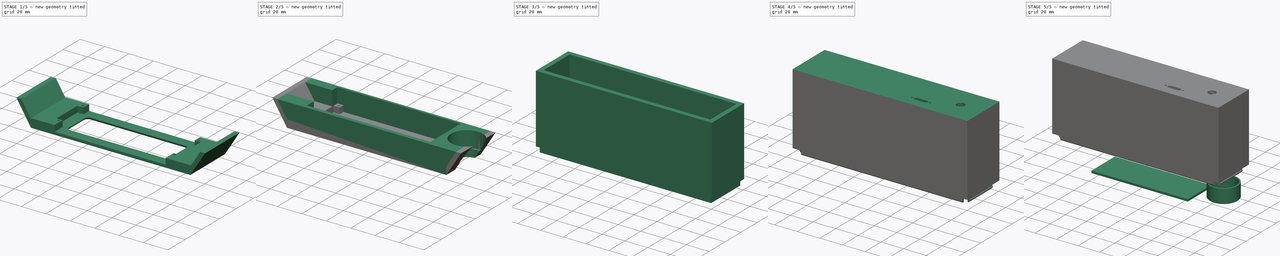
[diagram: build sequence overview — one tinted view per stage of 5, left to right]
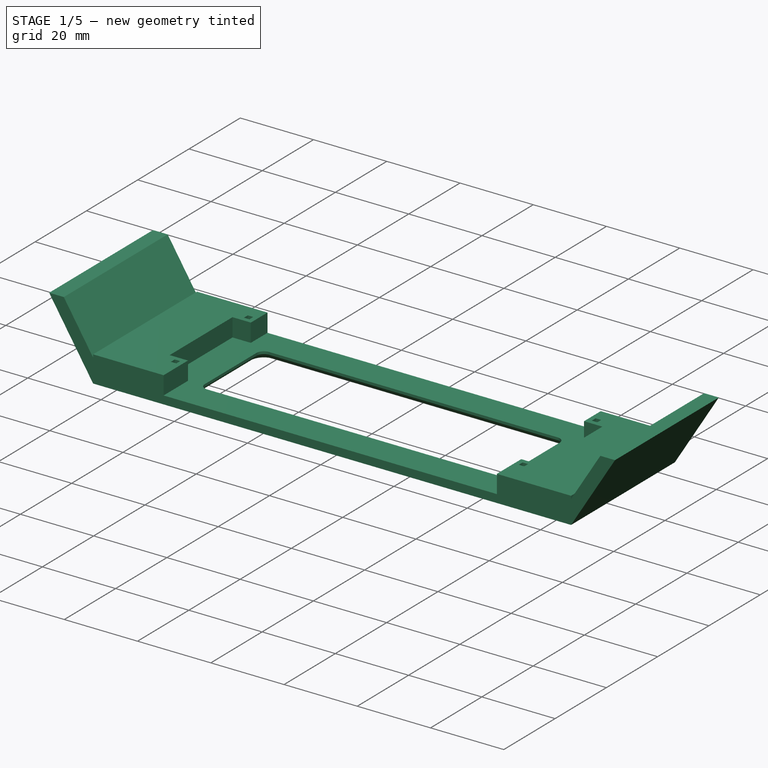
[diagram: stage 1 of 5 — iso view after this stage's code; geometry added in this stage tinted green]
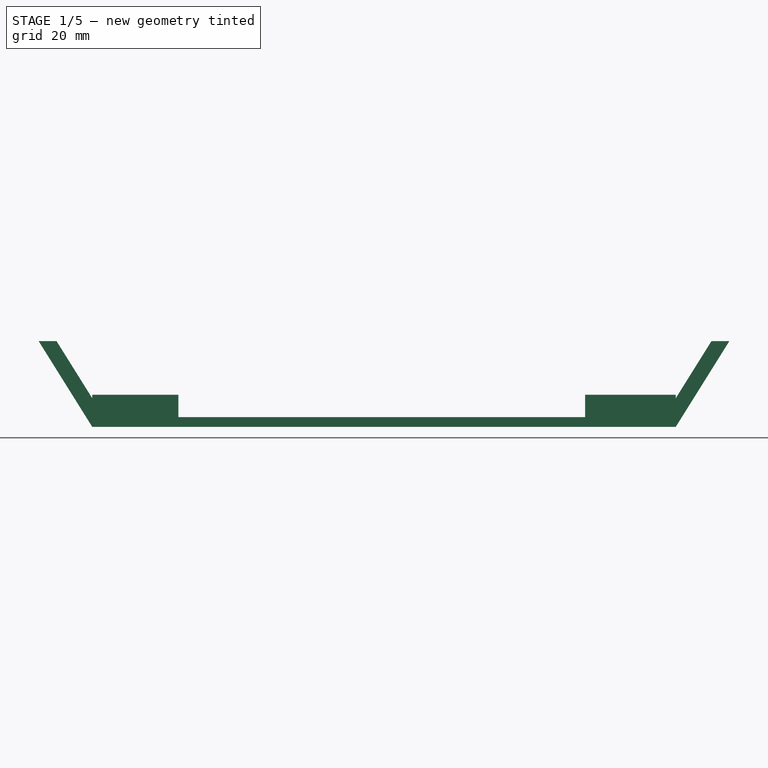
[diagram: stage 1 of 5 — front view after this stage's code; geometry added in this stage tinted green]
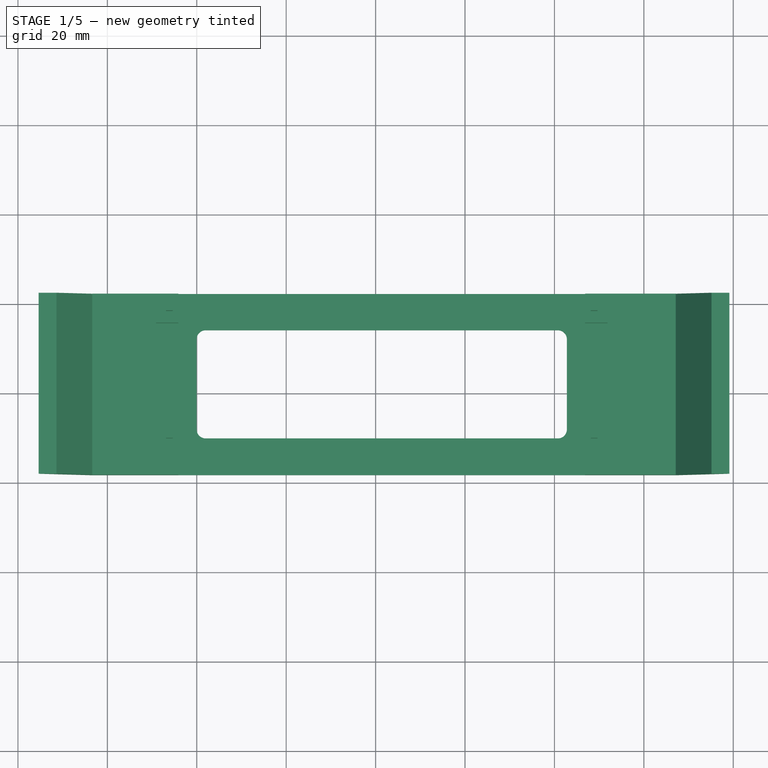
[diagram: stage 1 of 5 — top view after this stage's code; geometry added in this stage tinted green]
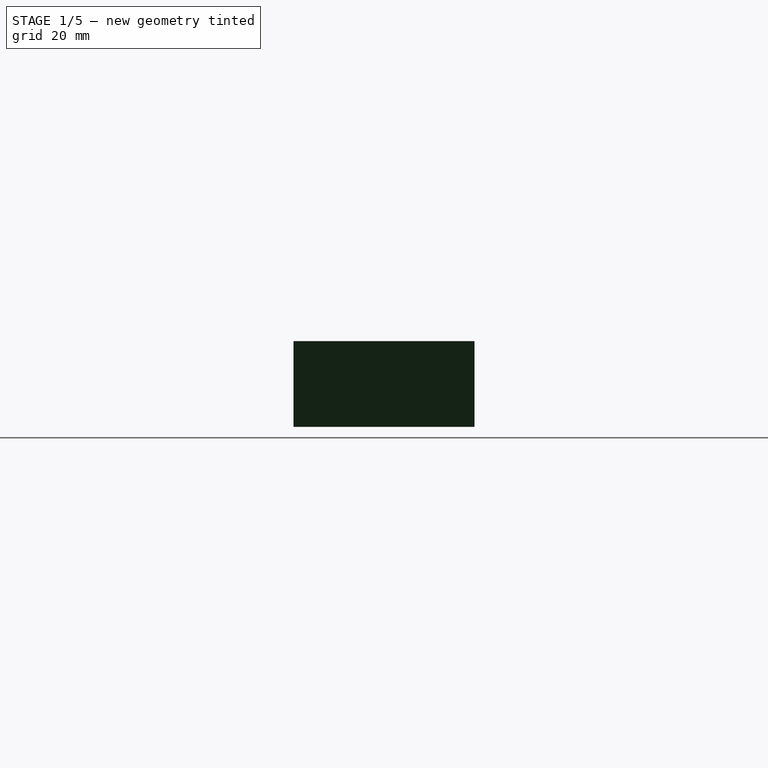
[diagram: stage 1 of 5 — right view after this stage's code; geometry added in this stage tinted green]
FCSTD DOCUMENT  (FreeCAD 1.0R39319 (Git))
Label: case_v3_6
License: All rights reserved
LicenseURL: https://en.wikipedia.org/wiki/All_rights_reserved
objects: Sketcher::SketchObject×36, PartDesign::Pad×16, PartDesign::Pocket×14, PartDesign::Plane×9, PartDesign::SubShapeBinder×4, PartDesign::Body×4, PartDesign::Chamfer×3, PartDesign::AdditiveLoft×3, App::Link×1, PartDesign::ShapeBinder×1, App::DocumentObjectGroup×1
note: 198 computed .brp shape members not serialized (recipe doc carries the construction recipe); baked Part::Feature solids carry a one-line shape summary decoded from their .brp
EXTERNAL_REF file=YR_PCB/YR_ASSEMBLED.FCStd obj=Assembly

FEATURE [PartDesign::Body] Body  label="Glass"
  AllowCompound = false
  Group = -> [Binder,DatumPlane,Sketch,Pad]
  Origin = -> Origin
  Tip = -> Pad
FEATURE [PartDesign::SubShapeBinder] Binder001
  BindCopyOnChange = 0
  BindMode = 0
  ClaimChildren = false
  Context = -> Body001 [Binder001.]
  Fuse = false
  MakeFace = true
  OffsetFill = false
  OffsetIntersection = false
  OffsetJoinType = 0
  OffsetOpenResult = false
  PartialLoad = false
  Refine = true
  Relative = true
  Support = -> [AssemblyLink]
  _Version = 2
FEATURE [PartDesign::ShapeBinder] CopyPad
  Placement = pos=(0,7.79e-14,-2) rot=(0,0,1;0rad)
  TraceSupport = false
FEATURE [PartDesign::Plane] DatumPlane001
  AttachmentSupport = -> [CopyPad]
  Length = 174.114
  MapMode = 5
  Placement = pos=(0,2.183e-13,-5.60002) rot=(1,0,0;3.14159rad)
  ResizeMode = 0
  Width = 81.864
FEATURE [Sketcher::SketchObject] Sketch001  label="Front panel"
  ArcFitTolerance = 1e-06
  AttachmentSupport = -> [DatumPlane001]
  ExternalGeometry = -> [Binder001]
  FullyConstrained = true
  MakeInternals = false
  MapMode = 5
  Placement = pos=(0,2.183e-13,-5.60002) rot=(1,0,0;3.14159rad)
  sketch-geometry (4):
    g0: LineSegment StartX=-63.375 StartY=18.2499 StartZ=0 EndX=-63.375 EndY=-22.2501 EndZ=0
    g1: LineSegment StartX=-63.375 StartY=-22.2501 StartZ=0 EndX=67.125 EndY=-22.2501 EndZ=0
    g2: LineSegment StartX=67.125 StartY=-22.2501 StartZ=0 EndX=67.125 EndY=18.2499 EndZ=0
    g3: LineSegment StartX=67.125 StartY=18.2499 StartZ=0 EndX=-63.375 EndY=18.2499 EndZ=0
  constraints (12):
    c: Coincident(g0,g1)
    c: Coincident(g1,g2)
    c: Coincident(g2,g3)
    c: Coincident(g3,g0)
    c: Vertical(g0)
    c: Vertical(g2)
    c: Horizontal(g1)
    c: Horizontal(g3)
    c: DistanceY(g-3,g0) = 5
    c: DistanceY(g0,g-4) = 2
    c: DistanceX(g-3,g2) = 15
    c: DistanceX(g0,g-3) = 15
FEATURE [PartDesign::Pad] Pad001
  Direction = (0,3.9e-14,-1)
  Length = 2.2
  Length2 = 10
  Placement = pos=(0,2.183e-13,-5.60002) rot=(1,0,0;3.14159rad)
  Profile = -> Sketch001
  ReferenceAxis = -> Sketch001 [N_Axis]
  Refine = true
  Suppressed = false
  Type = 0
FEATURE [PartDesign::Plane] DatumPlane002
  AttachmentSupport = -> [Pad001]
  Length = 174.114
  MapMode = 5
  Placement = pos=(0,2.183e-13,-5.60002) rot=(0,0,1;0rad)
  ResizeMode = 0
  Width = 81.864
FEATURE [Sketcher::SketchObject] Sketch002
  ArcFitTolerance = 1e-06
  AttachmentSupport = -> [DatumPlane002]
  ExternalGeometry = -> [Binder001,Pad001]
  FullyConstrained = true
  MakeInternals = false
  MapMode = 5
  Placement = pos=(0,2.183e-13,-5.60002) rot=(0,0,1;0rad)
  sketch-geometry (16):
    g0: LineSegment StartX=-63.375 StartY=22.2501 StartZ=0 EndX=-44.125 EndY=22.2501 EndZ=0
    g1: LineSegment StartX=-44.125 StartY=22.2501 StartZ=0 EndX=-44.125 EndY=15.7501 EndZ=0
    g2: LineSegment StartX=-44.125 StartY=15.7501 StartZ=0 EndX=-49.125 EndY=15.7501 EndZ=0
    g3: LineSegment StartX=-49.125 StartY=15.7501 StartZ=0 EndX=-49.125 EndY=-8.74994 EndZ=0
    g4: LineSegment StartX=-49.125 StartY=-8.74994 StartZ=0 EndX=-44.125 EndY=-8.74994 EndZ=0
    g5: LineSegment StartX=-44.125 StartY=-8.74994 StartZ=0 EndX=-44.125 EndY=-18.2499 EndZ=0
    g6: LineSegment StartX=-44.125 StartY=-18.2499 StartZ=0 EndX=-63.375 EndY=-18.2499 EndZ=0
    g7: LineSegment StartX=-63.375 StartY=-18.2499 StartZ=0 EndX=-63.375 EndY=22.2501 EndZ=0
    g8: LineSegment StartX=67.125 StartY=22.2501 StartZ=0 EndX=46.875 EndY=22.2501 EndZ=0
    g9: LineSegment StartX=46.875 StartY=22.2501 StartZ=0 EndX=46.875 EndY=15.7501 EndZ=0
    g10: LineSegment StartX=46.875 StartY=15.7501 StartZ=0 EndX=51.875 EndY=15.7501 EndZ=0
    g11: LineSegment StartX=51.875 StartY=15.7501 StartZ=0 EndX=51.875 EndY=-8.74993 EndZ=0
    g12: LineSegment StartX=51.875 StartY=-8.74993 StartZ=0 EndX=46.875 EndY=-8.74993 EndZ=0
    g13: LineSegment StartX=46.875 StartY=-8.74993 StartZ=0 EndX=46.875 EndY=-18.2499 EndZ=0
    g14: LineSegment StartX=46.875 StartY=-18.2499 StartZ=0 EndX=67.125 EndY=-18.2499 EndZ=0
    g15: LineSegment StartX=67.125 StartY=-18.2499 StartZ=0 EndX=67.125 EndY=22.2501 EndZ=0
  constraints (44):
    c: Coincident(g-7,g0)
    c: Horizontal(g0)
    c: Coincident(g0,g1)
    c: Vertical(g1)
    c: Coincident(g1,g2)
    c: Horizontal(g2)
    c: Coincident(g2,g3)
    c: Vertical(g3)
    c: Coincident(g3,g4)
    c: Horizontal(g4)
    c: Coincident(g4,g5)
    c: Vertical(g5)
    c: Coincident(g5,g6)
    c: Coincident(g6,g-7)
    c: Horizontal(g6)
    c: Coincident(g6,g7)
    c: Coincident(g7,g0)
    c: Coincident(g-8,g8)
    c: Horizontal(g8)
    c: Coincident(g8,g9)
    c: Vertical(g9)
    c: Coincident(g9,g10)
    c: Horizontal(g10)
    c: Coincident(g10,g11)
    c: Vertical(g11)
    c: Coincident(g11,g12)
    c: Horizontal(g12)
    c: Coincident(g12,g13)
    c: Vertical(g13)
    c: Coincident(g13,g14)
    c: Coincident(g14,g-8)
    c: Horizontal(g14)
    c: Coincident(g14,g15)
    c: Coincident(g15,g8)
    c: DistanceY(g9,g-4) = 2
    c: DistanceX(g9,g-4) = 2
    c: DistanceX(g12,g-3) = 2
    c: DistanceY(g-3,g12) = 2
    c: DistanceX(g-5,g1) = 2
    c: DistanceY(g1,g-5) = 2
    c: DistanceX(g-6,g4) = 2
    c: DistanceY(g-6,g4) = 2
    c: DistanceX(g2,g2) = 5
    c: DistanceX(g10,g10) = 5
FEATURE [PartDesign::Pad] Pad002
  BaseFeature = -> Pad001
  Direction = (0,-3.91e-14,1)
  Length = 10
  Length2 = 10
  Placement = pos=(0,2.183e-13,-5.60002) rot=(1,0,0;3.14159rad)
  Profile = -> Sketch002
  ReferenceAxis = -> Sketch002 [N_Axis]
  Refine = true
  Suppressed = false
  Type = 3
  UpToFace = -> Binder001 [Face30]
FEATURE [Sketcher::SketchObject] Sketch003
  ArcFitTolerance = 1e-06
  AttachmentSupport = -> [Pad002]
  ExternalGeometry = -> [Binder001]
  FullyConstrained = true
  MakeInternals = false
  MapMode = 5
  Placement = pos=(0,2.31e-14,-0.600022) rot=(0,0,1;0rad)
  sketch-geometry (20):
    g0: LineSegment StartX=-46.875 StartY=17.0001 StartZ=0 EndX=-45.375 EndY=17.0001 EndZ=0
    g1: LineSegment StartX=-45.375 StartY=17.0001 StartZ=0 EndX=-45.375 EndY=18.5001 EndZ=0
    g2: LineSegment StartX=-45.375 StartY=18.5001 StartZ=0 EndX=-46.875 EndY=18.5001 EndZ=0
    g3: LineSegment StartX=-46.875 StartY=18.5001 StartZ=0 EndX=-46.875 EndY=17.0001 EndZ=0
    g4: GeomPoint [constr] X=-46.125 Y=17.7501 Z=0
    g5: LineSegment StartX=-46.875 StartY=-11.4999 StartZ=0 EndX=-45.375 EndY=-11.4999 EndZ=0
    g6: LineSegment StartX=-45.375 StartY=-11.4999 StartZ=0 EndX=-45.375 EndY=-9.99994 EndZ=0
    g7: LineSegment StartX=-45.375 StartY=-9.99994 StartZ=0 EndX=-46.875 EndY=-9.99994 EndZ=0
    g8: LineSegment StartX=-46.875 StartY=-9.99994 StartZ=0 EndX=-46.875 EndY=-11.4999 EndZ=0
    g9: GeomPoint [constr] X=-46.125 Y=-10.7499 Z=0
    g10: LineSegment StartX=48.125 StartY=17.0001 StartZ=0 EndX=49.625 EndY=17.0001 EndZ=0
    g11: LineSegment StartX=49.625 StartY=17.0001 StartZ=0 EndX=49.625 EndY=18.5001 EndZ=0
    g12: LineSegment StartX=49.625 StartY=18.5001 StartZ=0 EndX=48.125 EndY=18.5001 EndZ=0
    g13: LineSegment StartX=48.125 StartY=18.5001 StartZ=0 EndX=48.125 EndY=17.0001 EndZ=0
    g14: GeomPoint [constr] X=48.875 Y=17.7501 Z=0
    g15: LineSegment StartX=48.125 StartY=-11.4999 StartZ=0 EndX=49.625 EndY=-11.4999 EndZ=0
    g16: LineSegment StartX=49.625 StartY=-11.4999 StartZ=0 EndX=49.625 EndY=-9.99993 EndZ=0
    g17: LineSegment StartX=49.625 StartY=-9.99993 StartZ=0 EndX=48.125 EndY=-9.99993 EndZ=0
    g18: LineSegment StartX=48.125 StartY=-9.99993 StartZ=0 EndX=48.125 EndY=-11.4999 EndZ=0
    g19: GeomPoint [constr] X=48.875 Y=-10.7499 Z=0
  constraints (48):
    c: Coincident(g0,g1)
    c: Coincident(g1,g2)
    c: Coincident(g2,g3)
    c: Coincident(g3,g0)
    c: Horizontal(g0)
    c: Horizontal(g2)
    c: Vertical(g1)
    c: Vertical(g3)
    c: Symmetric(g2,g0,g4)
    c: Distance(g1,g3) = 1.5
    c: Coincident(g4,g-3)
    c: Coincident(g5,g6)
    c: Coincident(g6,g7)
    c: Coincident(g7,g8)
    c: Coincident(g8,g5)
    c: Horizontal(g5)
    c: Horizontal(g7)
    c: Vertical(g6)
    c: Vertical(g8)
    c: Symmetric(g7,g5,g9)
    c: Distance(g6,g8) = 1.5
    c: Coincident(g9,g-4)
    c: Coincident(g10,g11)
    c: Coincident(g11,g12)
    c: Coincident(g12,g13)
    c: Coincident(g13,g10)
    c: Horizontal(g10)
    c: Horizontal(g12)
    c: Vertical(g11)
    c: Vertical(g13)
    c: Symmetric(g12,g10,g14)
    c: Distance(g11,g13) = 1.5
    c: Coincident(g14,g-5)
    c: Coincident(g15,g16)
    c: Coincident(g17,g18)
    c: Coincident(g18,g15)
    c: Horizontal(g15)
    c: Horizontal(g17)
    c: Vertical(g16)
    c: Vertical(g18)
    c: Symmetric(g17,g15,g19)
    c: Distance(g16,g18) = 1.5
    c: Coincident(g19,g-6)
    c: Equal(g0,g1)
    c: Equal(g7,g6)
    c: Equal(g12,g13)
    c: Coincident(g17,g16)
    c: Equal(g16,g15)
FEATURE [PartDesign::Pocket] Pocket  label="Display mount holes"
  BaseFeature = -> Pad002
  Direction = (0,3.91e-14,-1)
  Length = 5
  Length2 = 5
  Placement = pos=(0,2.183e-13,-5.60002) rot=(1,0,0;3.14159rad)
  Profile = -> Sketch003
  ReferenceAxis = -> Sketch003 [N_Axis]
  Refine = true
  Suppressed = false
  Type = 0
FEATURE [Sketcher::SketchObject] Sketch004
  ArcFitTolerance = 1e-06
  AttachmentSupport = -> [Pocket]
  ExternalGeometry = -> [Binder001,Pocket]
  FullyConstrained = true
  MakeInternals = false
  MapMode = 5
  Placement = pos=(0,3.041e-13,-7.80002) rot=(1,0,0;3.14159rad)
  sketch-geometry (10):
    g0: LineSegment StartX=-40.025 StartY=8.03994 StartZ=0 EndX=-40.025 EndY=-12.1401 EndZ=0
    g1: LineSegment StartX=-38.025 StartY=-14.1401 StartZ=0 EndX=40.775 EndY=-14.1401 EndZ=0
    g2: LineSegment StartX=42.775 StartY=-12.1401 StartZ=0 EndX=42.775 EndY=8.03994 EndZ=0
    g3: LineSegment StartX=40.775 StartY=10.0399 StartZ=0 EndX=-38.025 EndY=10.0399 EndZ=0
    g4: ArcOfCircle CenterX=-38.025 CenterY=8.03994 CenterZ=0 NormalX=0 NormalY=0 NormalZ=1 AngleXU=0 Radius=2 StartAngle=1.5708 EndAngle=3.14159
    g5: ArcOfCircle CenterX=-38.025 CenterY=-12.1401 CenterZ=0 NormalX=0 NormalY=0 NormalZ=1 AngleXU=0 Radius=2 StartAngle=3.14159 EndAngle=4.71239
    g6: ArcOfCircle CenterX=40.775 CenterY=-12.1401 CenterZ=0 NormalX=0 NormalY=0 NormalZ=1 AngleXU=0 Radius=2 StartAngle=4.71239 EndAngle=6.28319
    g7: ArcOfCircle CenterX=40.775 CenterY=8.03994 CenterZ=0 NormalX=0 NormalY=0 NormalZ=1 AngleXU=0 Radius=2 StartAngle=0 EndAngle=1.5708
    g8: GeomPoint [constr] X=-40.025 Y=10.0399 Z=0
    g9: GeomPoint [constr] X=42.775 Y=-14.1401 Z=0
  constraints (26):
    c: Tangent(g0,g4) = -1.5708
    c: Tangent(g0,g5) = -1.5708
    c: Tangent(g1,g5) = -1.5708
    c: Tangent(g1,g6) = -1.5708
    c: Tangent(g2,g6) = -1.5708
    c: Tangent(g2,g7) = -1.5708
    c: Tangent(g3,g7) = -1.5708
    c: Tangent(g3,g4) = -1.5708
    c: Vertical(g0)
    c: Vertical(g2)
    c: Horizontal(g1)
    c: Horizontal(g3)
    c: Equal(g4,g5)
    c: Equal(g5,g6)
    c: Equal(g6,g7)
    c: PointOnObject(g8,g0)
    c: PointOnObject(g8,g3)
    c: PointOnObject(g9,g1)
    c: PointOnObject(g9,g2)
    c: Radius(g5) = 2
    c: DistanceX(g8,g-5) = 2
    c: DistanceY(g-3,g8) = 3
    c: DistanceY(g9,g-4) = 0
    c: DistanceX(g-6,g9) = 2
    c: DistanceY(g-8,g1) = 8.10999
    c: Distance(g3,g-7) = 8.21
FEATURE [PartDesign::Pocket] Pocket001  label="Display window"
  BaseFeature = -> Pocket
  Direction = (0,-3.92e-14,1)
  Length = 5
  Length2 = 5
  Placement = pos=(0,2.183e-13,-5.60002) rot=(1,0,0;3.14159rad)
  Profile = -> Sketch004
  ReferenceAxis = -> Sketch004 [N_Axis]
  Refine = true
  Suppressed = false
  Type = 0
FEATURE [PartDesign::Chamfer] Chamfer
  Angle = 45
  Base = -> Pocket001 [Edge58]
  BaseFeature = -> Pocket001
  ChamferType = 0
  FlipDirection = false
  Placement = pos=(0,2.183e-13,-5.60002) rot=(1,0,0;3.14159rad)
  Refine = true
  Size = 1.5
  Size2 = 1
  SupportTransform = false
  Suppressed = false
  UseAllEdges = false
FEATURE [App::DocumentObjectGroup] Measurements
FEATURE [PartDesign::Plane] DatumPlane003
  AttachmentSupport = -> [Chamfer]
  Length = 174.114
  MapMode = 5
  Placement = pos=(0,3.041e-13,-7.80002) rot=(1,0,0;3.14159rad)
  ResizeMode = 0
  Width = 81.864
FEATURE [Sketcher::SketchObject] Sketch005
  ArcFitTolerance = 1e-06
  AttachmentSupport = -> [DatumPlane003]
  ExternalGeometry = -> [Chamfer]
  FullyConstrained = true
  MakeInternals = false
  MapMode = 5
  Placement = pos=(0,3.041e-13,-7.80002) rot=(1,0,0;3.14159rad)
  sketch-geometry (4):
    g0: LineSegment StartX=67.125 StartY=18.2499 StartZ=0 EndX=63.125 EndY=18.2499 EndZ=0
    g1: LineSegment StartX=63.125 StartY=18.2499 StartZ=0 EndX=63.125 EndY=-22.2501 EndZ=0
    g2: LineSegment StartX=63.125 StartY=-22.2501 StartZ=0 EndX=67.125 EndY=-22.2501 EndZ=0
    g3: LineSegment StartX=67.125 StartY=-22.2501 StartZ=0 EndX=67.125 EndY=18.2499 EndZ=0
  constraints (10):
    c: Coincident(g0,g1)
    c: Coincident(g1,g2)
    c: Coincident(g2,g3)
    c: Coincident(g3,g0)
    c: Horizontal(g0)
    c: Horizontal(g2)
    c: Vertical(g1)
    c: Coincident(g0,g-3)
    c: Coincident(g2,g-3)
    c: DistanceX(g2,g2) = 4
FEATURE [PartDesign::Plane] DatumPlane004
  AttachmentSupport = -> [Binder001]
  Length = 174.114
  MapMode = 5
  Placement = pos=(0,-4.446e-13,11.4) rot=(1,0,0;3.14159rad)
  ResizeMode = 0
  Width = 81.864
FEATURE [Sketcher::SketchObject] Sketch006
  ArcFitTolerance = 1e-06
  AttachmentSupport = -> [DatumPlane004]
  ExternalGeometry = -> [Sketch005]
  FullyConstrained = true
  MakeInternals = false
  MapMode = 5
  Placement = pos=(0,-4.446e-13,11.4) rot=(1,0,0;3.14159rad)
  sketch-geometry (4):
    g0: LineSegment StartX=75.125 StartY=18.2499 StartZ=0 EndX=75.125 EndY=-22.2501 EndZ=0
    g1: LineSegment StartX=75.125 StartY=-22.2501 StartZ=0 EndX=79.125 EndY=-22.2501 EndZ=0
    g2: LineSegment StartX=79.125 StartY=-22.2501 StartZ=0 EndX=79.125 EndY=18.2499 EndZ=0
    g3: LineSegment StartX=79.125 StartY=18.2499 StartZ=0 EndX=75.125 EndY=18.2499 EndZ=0
  constraints (12):
    c: Coincident(g0,g1)
    c: Coincident(g1,g2)
    c: Coincident(g2,g3)
    c: Coincident(g3,g0)
    c: Vertical(g0)
    c: Vertical(g2)
    c: Horizontal(g1)
    c: Horizontal(g3)
    c: Horizontal(g0,g-3)
    c: Horizontal(g-3,g0)
    c: DistanceX(g1,g1) = 4
    c: DistanceX(g-3,g0) = 8
FEATURE [PartDesign::AdditiveLoft] AdditiveLoft
  BaseFeature = -> Chamfer
  Closed = false
  Placement = pos=(0,2.183e-13,-5.60002) rot=(1,0,0;3.14159rad)
  Profile = -> Sketch006
  Refine = true
  Ruled = false
  Sections = -> [Sketch005]
  Suppressed = false
FEATURE [Sketcher::SketchObject] Sketch007
  ArcFitTolerance = 1e-06
  AttachmentSupport = -> [DatumPlane003]
  ExternalGeometry = -> [AdditiveLoft]
  FullyConstrained = true
  MakeInternals = false
  MapMode = 5
  Placement = pos=(0,3.041e-13,-7.80002) rot=(1,0,0;3.14159rad)
  sketch-geometry (4):
    g0: LineSegment StartX=-63.375 StartY=18.2499 StartZ=0 EndX=-63.375 EndY=-22.2501 EndZ=0
    g1: LineSegment StartX=-63.375 StartY=-22.2501 StartZ=0 EndX=-59.375 EndY=-22.2501 EndZ=0
    g2: LineSegment StartX=-59.375 StartY=-22.2501 StartZ=0 EndX=-59.375 EndY=18.2499 EndZ=0
    g3: LineSegment StartX=-59.375 StartY=18.2499 StartZ=0 EndX=-63.375 EndY=18.2499 EndZ=0
  constraints (10):
    c: Coincident(g0,g1)
    c: Coincident(g1,g2)
    c: Coincident(g2,g3)
    c: Coincident(g3,g0)
    c: Vertical(g2)
    c: Horizontal(g1)
    c: Horizontal(g3)
    c: Coincident(g0,g-3)
    c: Coincident(g-3,g0)
    c: DistanceX(g1,g1) = 4
FEATURE [Sketcher::SketchObject] Sketch008
  ArcFitTolerance = 1e-06
  AttachmentSupport = -> [DatumPlane004]
  ExternalGeometry = -> [Sketch007]
  FullyConstrained = true
  MakeInternals = false
  MapMode = 5
  Placement = pos=(0,-4.446e-13,11.4) rot=(1,0,0;3.14159rad)
  sketch-geometry (4):
    g0: LineSegment StartX=-75.375 StartY=18.2499 StartZ=0 EndX=-75.375 EndY=-22.2501 EndZ=0
    g1: LineSegment StartX=-75.375 StartY=-22.2501 StartZ=0 EndX=-71.375 EndY=-22.2501 EndZ=0
    g2: LineSegment StartX=-71.375 StartY=-22.2501 StartZ=0 EndX=-71.375 EndY=18.2499 EndZ=0
    g3: LineSegment StartX=-71.375 StartY=18.2499 StartZ=0 EndX=-75.375 EndY=18.2499 EndZ=0
  constraints (12):
    c: Coincident(g0,g1)
    c: Coincident(g1,g2)
    c: Coincident(g2,g3)
    c: Coincident(g3,g0)
    c: Vertical(g0)
    c: Vertical(g2)
    c: Horizontal(g1)
    c: Horizontal(g3)
    c: Horizontal(g-3,g2)
    c: Horizontal(g-3,g1)
    c: DistanceX(g3,g3) = 4
    c: DistanceX(g2,g-3) = 8
FEATURE [PartDesign::AdditiveLoft] AdditiveLoft001
  BaseFeature = -> AdditiveLoft
  Closed = false
  Placement = pos=(0,2.183e-13,-5.60002) rot=(1,0,0;3.14159rad)
  Profile = -> Sketch008
  Refine = true
  Ruled = false
  Sections = -> [Sketch007]
  Suppressed = false
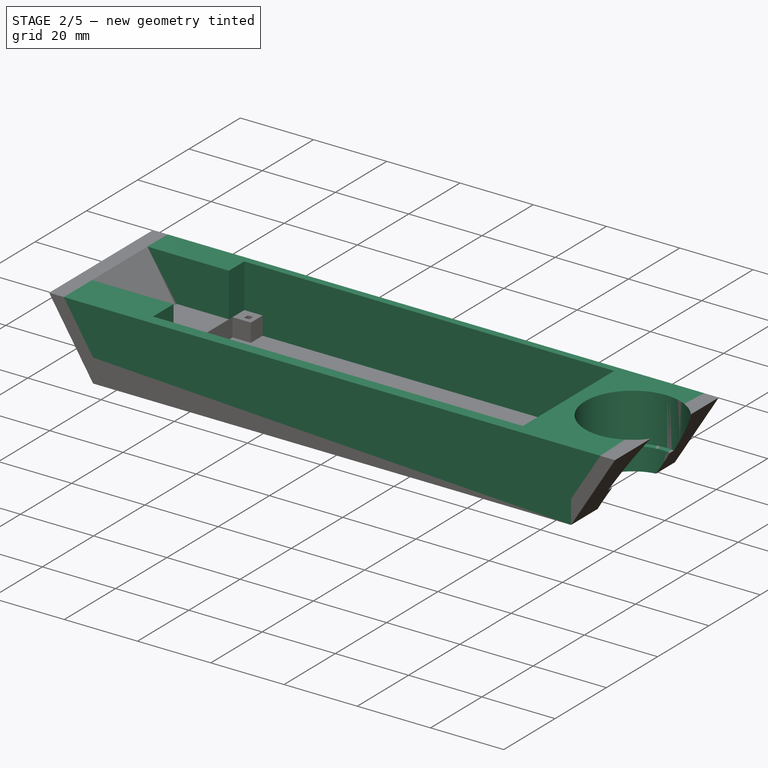
[diagram: stage 2 of 5 — iso view after this stage's code; geometry added in this stage tinted green]
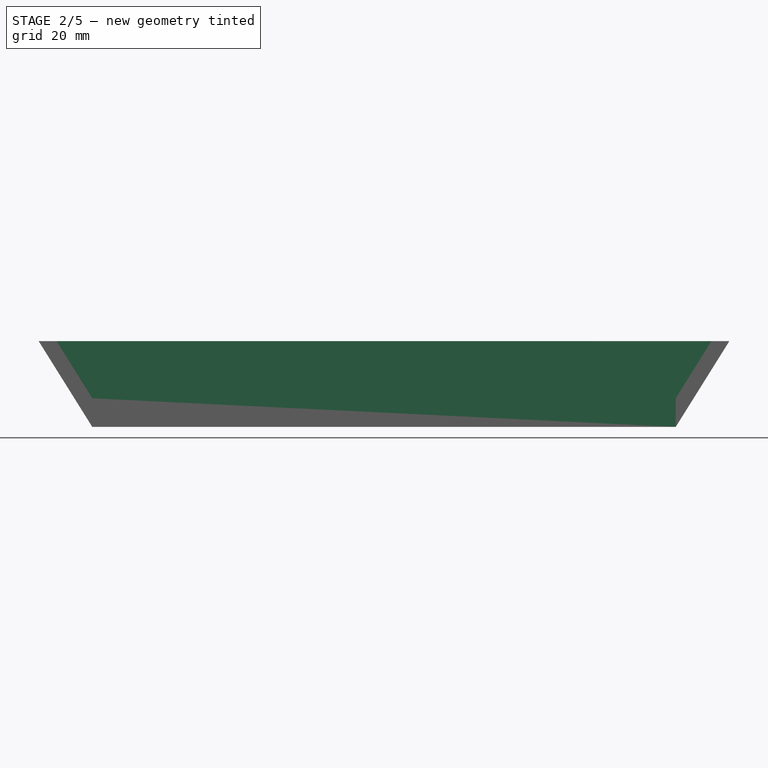
[diagram: stage 2 of 5 — front view after this stage's code; geometry added in this stage tinted green]
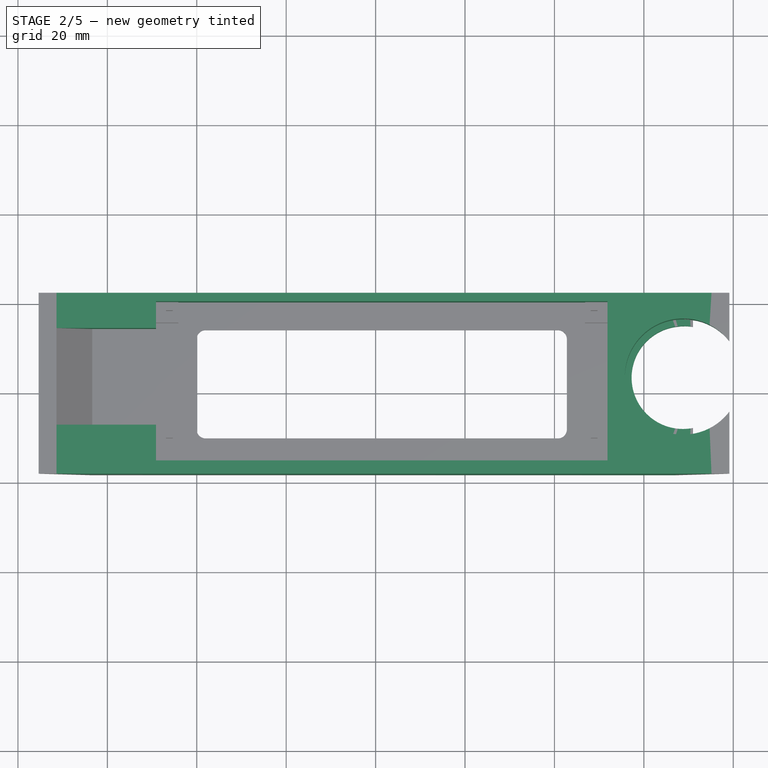
[diagram: stage 2 of 5 — top view after this stage's code; geometry added in this stage tinted green]
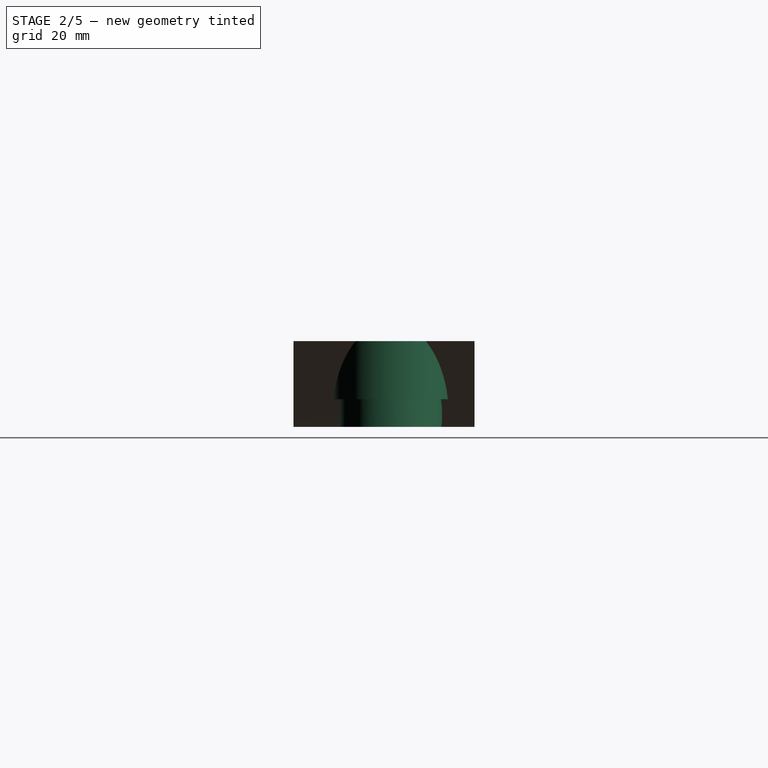
[diagram: stage 2 of 5 — right view after this stage's code; geometry added in this stage tinted green]
FEATURE [Sketcher::SketchObject] Sketch009
  ArcFitTolerance = 1e-06
  AttachmentSupport = -> [DatumPlane004]
  ExternalGeometry = -> [AdditiveLoft001]
  FullyConstrained = true
  MakeInternals = false
  MapMode = 5
  Placement = pos=(0,-4.446e-13,11.4) rot=(1,0,0;3.14159rad)
  sketch-geometry (4):
    g0: LineSegment StartX=-71.375 StartY=18.2499 StartZ=0 EndX=-71.375 EndY=15.2499 EndZ=0
    g1: LineSegment StartX=-71.375 StartY=15.2499 StartZ=0 EndX=75.125 EndY=15.2499 EndZ=0
    g2: LineSegment StartX=75.125 StartY=15.2499 StartZ=0 EndX=75.125 EndY=18.2499 EndZ=0
    g3: LineSegment StartX=75.125 StartY=18.2499 StartZ=0 EndX=-71.375 EndY=18.2499 EndZ=0
  constraints (10):
    c: Coincident(g0,g1)
    c: Coincident(g1,g2)
    c: Coincident(g2,g3)
    c: Coincident(g3,g0)
    c: Vertical(g0)
    c: Vertical(g2)
    c: Horizontal(g1)
    c: Coincident(g0,g-4)
    c: Coincident(g2,g-3)
    c: DistanceY(g2,g2) = 3
FEATURE [PartDesign::Pad] Pad003
  BaseFeature = -> AdditiveLoft001
  Direction = (0,3.9e-14,-1)
  Length = 10
  Length2 = 10
  Placement = pos=(0,2.183e-13,-5.60002) rot=(1,0,0;3.14159rad)
  Profile = -> Sketch009
  ReferenceAxis = -> Sketch009 [N_Axis]
  Refine = true
  Suppressed = false
  Type = 5
FEATURE [Sketcher::SketchObject] Sketch010
  ArcFitTolerance = 1e-06
  AttachmentSupport = -> [DatumPlane004]
  ExternalGeometry = -> [Pad003]
  FullyConstrained = true
  MakeInternals = false
  MapMode = 5
  Placement = pos=(0,-4.446e-13,11.4) rot=(1,0,0;3.14159rad)
  sketch-geometry (4):
    g0: LineSegment StartX=-71.375 StartY=-22.2501 StartZ=0 EndX=75.125 EndY=-22.2501 EndZ=0
    g1: LineSegment StartX=75.125 StartY=-22.2501 StartZ=0 EndX=75.125 EndY=-20.3501 EndZ=0
    g2: LineSegment StartX=75.125 StartY=-20.3501 StartZ=0 EndX=-71.375 EndY=-20.3501 EndZ=0
    g3: LineSegment StartX=-71.375 StartY=-20.3501 StartZ=0 EndX=-71.375 EndY=-22.2501 EndZ=0
  constraints (10):
    c: Coincident(g0,g1)
    c: Coincident(g1,g2)
    c: Coincident(g2,g3)
    c: Coincident(g3,g0)
    c: Horizontal(g2)
    c: Vertical(g1)
    c: Vertical(g3)
    c: Coincident(g0,g-3)
    c: Coincident(g0,g-4)
    c: DistanceY(g1,g1) = 1.9
FEATURE [PartDesign::Pad] Pad004
  BaseFeature = -> Pad003
  Direction = (0,3.9e-14,-1)
  Length = 10
  Length2 = 10
  Placement = pos=(0,2.183e-13,-5.60002) rot=(1,0,0;3.14159rad)
  Profile = -> Sketch010
  ReferenceAxis = -> Sketch010 [N_Axis]
  Refine = true
  Suppressed = false
  Type = 5
FEATURE [Sketcher::SketchObject] Sketch011
  ArcFitTolerance = 1e-06
  AttachmentSupport = -> [DatumPlane004]
  ExternalGeometry = -> [Pad004]
  FullyConstrained = true
  MakeInternals = false
  MapMode = 5
  Placement = pos=(0,-4.446e-13,11.4) rot=(1,0,0;3.14159rad)
  sketch-geometry (4):
    g0: LineSegment StartX=-71.375 StartY=-20.3501 StartZ=0 EndX=-49.125 EndY=-20.3501 EndZ=0
    g1: LineSegment StartX=-49.125 StartY=-20.3501 StartZ=0 EndX=-49.125 EndY=-14.3501 EndZ=0
    g2: LineSegment StartX=-49.125 StartY=-14.3501 StartZ=0 EndX=-71.375 EndY=-14.3501 EndZ=0
    g3: LineSegment StartX=-71.375 StartY=-14.3501 StartZ=0 EndX=-71.375 EndY=-20.3501 EndZ=0
  constraints (11):
    c: Coincident(g0,g1)
    c: Coincident(g1,g2)
    c: Coincident(g2,g3)
    c: Coincident(g3,g0)
    c: Horizontal(g0)
    c: Horizontal(g2)
    c: Vertical(g1)
    c: Vertical(g0,g2)
    c: DistanceY(g3,g3) = 6
    c: Coincident(g0,g-3)
    c: Vertical(g-4,g1)
FEATURE [PartDesign::Pad] Pad005
  BaseFeature = -> Pad004
  Direction = (0,3.9e-14,-1)
  Length = 10
  Length2 = 10
  Placement = pos=(0,2.183e-13,-5.60002) rot=(1,0,0;3.14159rad)
  Profile = -> Sketch011
  ReferenceAxis = -> Sketch011 [N_Axis]
  Refine = true
  Suppressed = false
  Type = 5
FEATURE [Sketcher::SketchObject] Sketch012
  ArcFitTolerance = 1e-06
  AttachmentSupport = -> [DatumPlane004]
  ExternalGeometry = -> [Pad005]
  FullyConstrained = true
  MakeInternals = false
  MapMode = 5
  Placement = pos=(0,-4.446e-13,11.4) rot=(1,0,0;3.14159rad)
  sketch-geometry (4):
    g0: LineSegment StartX=75.125 StartY=-20.3501 StartZ=0 EndX=75.125 EndY=15.2499 EndZ=0
    g1: LineSegment StartX=75.125 StartY=15.2499 StartZ=0 EndX=51.875 EndY=15.2499 EndZ=0
    g2: LineSegment StartX=51.875 StartY=15.2499 StartZ=0 EndX=51.875 EndY=-20.3501 EndZ=0
    g3: LineSegment StartX=51.875 StartY=-20.3501 StartZ=0 EndX=75.125 EndY=-20.3501 EndZ=0
  constraints (10):
    c: Coincident(g0,g1)
    c: Coincident(g1,g2)
    c: Vertical(g2)
    c: Horizontal(g1)
    c: Vertical(g-3,g1)
    c: Coincident(g3,g2)
    c: Coincident(g3,g0)
    c: Horizontal(g3)
    c: Coincident(g0,g-4)
    c: Coincident(g0,g-4)
FEATURE [PartDesign::Pad] Pad006
  BaseFeature = -> Pad005
  Direction = (0,3.9e-14,-1)
  Length = 10
  Length2 = 10
  Placement = pos=(0,2.183e-13,-5.60002) rot=(1,0,0;3.14159rad)
  Profile = -> Sketch012
  ReferenceAxis = -> Sketch012 [N_Axis]
  Refine = true
  Suppressed = false
  Type = 5
FEATURE [Sketcher::SketchObject] Sketch013  label="Knob hole 01"
  ArcFitTolerance = 1e-06
  AttachmentSupport = -> [DatumPlane004]
  ExternalGeometry = -> [Binder001]
  FullyConstrained = true
  MakeInternals = false
  MapMode = 5
  Placement = pos=(0,-4.446e-13,11.4) rot=(1,0,0;3.14159rad)
  sketch-geometry (1):
    g0: Circle CenterX=68.75 CenterY=-3.50007 CenterZ=0 NormalX=0 NormalY=0 NormalZ=1 AngleXU=0 Radius=11.5
  constraints (2):
    c: Coincident(g0,g-3)
    c: Diameter(g0) = 23
FEATURE [PartDesign::Pocket] Pocket002
  BaseFeature = -> Pad006
  Direction = (0,-3.9e-14,1)
  Length = 25
  Length2 = 5
  Placement = pos=(0,2.183e-13,-5.60002) rot=(1,0,0;3.14159rad)
  Profile = -> Sketch013
  ReferenceAxis = -> Sketch013 [N_Axis]
  Refine = true
  Reversed = true
  Suppressed = false
  Type = 0
FEATURE [Sketcher::SketchObject] Sketch014  label="Knob hole 02"
  ArcFitTolerance = 1e-06
  AttachmentSupport = -> [DatumPlane004]
  ExternalGeometry = -> [Pocket002]
  FullyConstrained = true
  MakeInternals = false
  MapMode = 5
  Placement = pos=(0,-4.446e-13,11.4) rot=(1,0,0;3.14159rad)
  sketch-geometry (1):
    g0: Circle CenterX=68.75 CenterY=-3.50007 CenterZ=0 NormalX=0 NormalY=0 NormalZ=1 AngleXU=0 Radius=13
  constraints (2):
    c: Coincident(g0,g-3)
    c: Diameter(g0) = 26
FEATURE [PartDesign::Pocket] Pocket003
  BaseFeature = -> Pocket002
  Direction = (0,-3.9e-14,1)
  Length = 13
  Length2 = 5
  Placement = pos=(0,2.183e-13,-5.60002) rot=(1,0,0;3.14159rad)
  Profile = -> Sketch014
  ReferenceAxis = -> Sketch014 [N_Axis]
  Refine = true
  Reversed = true
  Suppressed = false
  Type = 0
FEATURE [Sketcher::SketchObject] Sketch015
  ArcFitTolerance = 1e-06
  AttachmentSupport = -> [DatumPlane004]
  ExternalGeometry = -> [Pocket003]
  FullyConstrained = true
  MakeInternals = false
  MapMode = 5
  Placement = pos=(0,-4.446e-13,11.4) rot=(1,0,0;3.14159rad)
  sketch-geometry (4):
    g0: LineSegment StartX=-71.375 StartY=15.2499 StartZ=0 EndX=-71.375 EndY=7.24994 EndZ=0
    g1: LineSegment StartX=-71.375 StartY=7.24994 StartZ=0 EndX=-49.125 EndY=7.24994 EndZ=0
    g2: LineSegment StartX=-49.125 StartY=7.24994 StartZ=0 EndX=-49.125 EndY=15.2499 EndZ=0
    g3: LineSegment StartX=-49.125 StartY=15.2499 StartZ=0 EndX=-71.375 EndY=15.2499 EndZ=0
  constraints (11):
    c: Coincident(g0,g1)
    c: Coincident(g1,g2)
    c: Coincident(g2,g3)
    c: Coincident(g3,g0)
    c: Vertical(g0)
    c: Vertical(g2)
    c: Horizontal(g1)
    c: Horizontal(g3)
    c: PointOnObject(g1,g-3)
    c: DistanceY(g0,g0) = 8
    c: Coincident(g0,g-4)
FEATURE [PartDesign::Pad] Pad007
  BaseFeature = -> Pocket003
  Direction = (0,3.9e-14,-1)
  Length = 10
  Length2 = 10
  Placement = pos=(0,2.183e-13,-5.60002) rot=(1,0,0;3.14159rad)
  Profile = -> Sketch015
  ReferenceAxis = -> Sketch015 [N_Axis]
  Refine = true
  Suppressed = false
  Type = 5
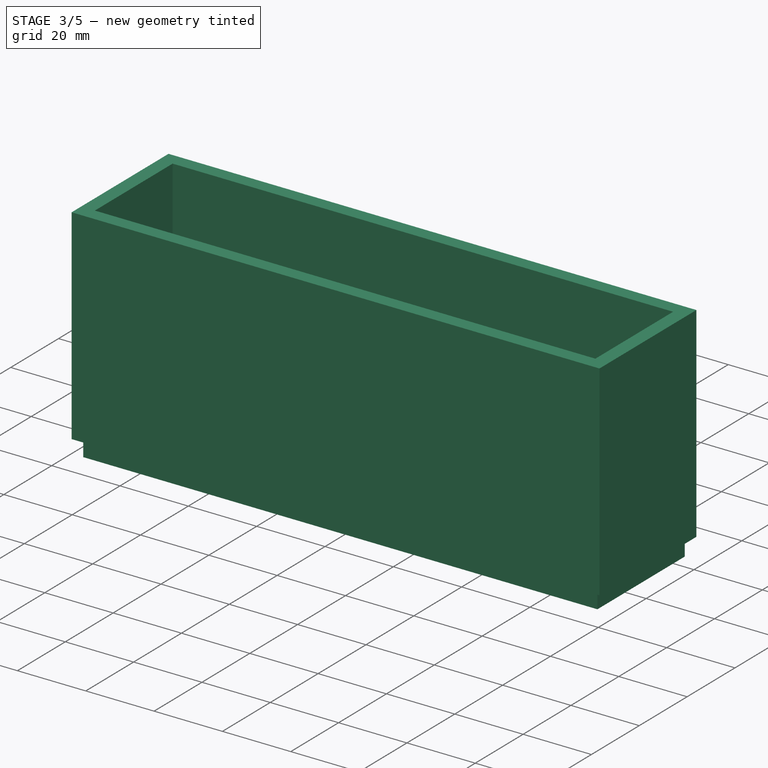
[diagram: stage 3 of 5 — iso view after this stage's code; geometry added in this stage tinted green]
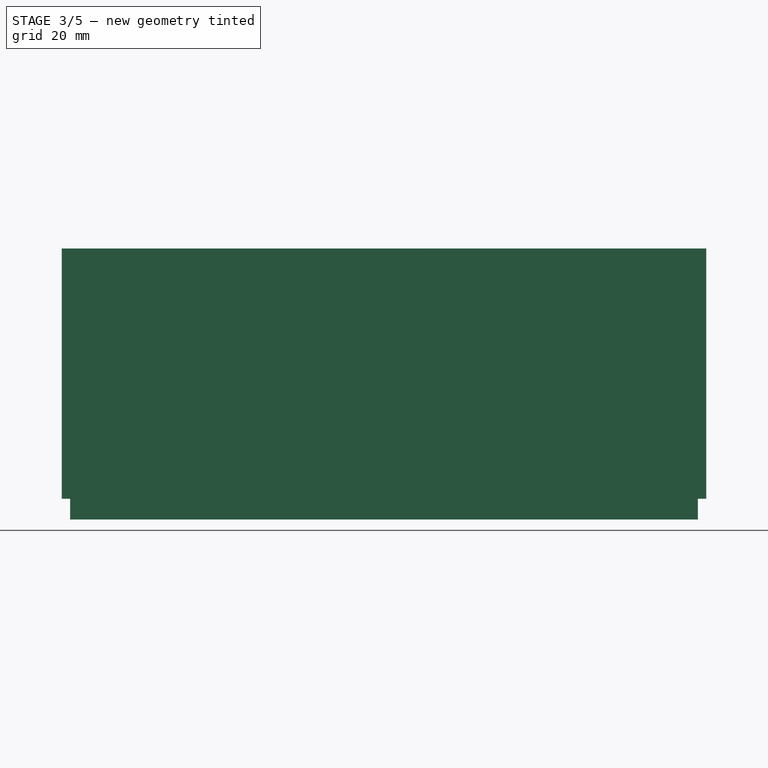
[diagram: stage 3 of 5 — front view after this stage's code; geometry added in this stage tinted green]
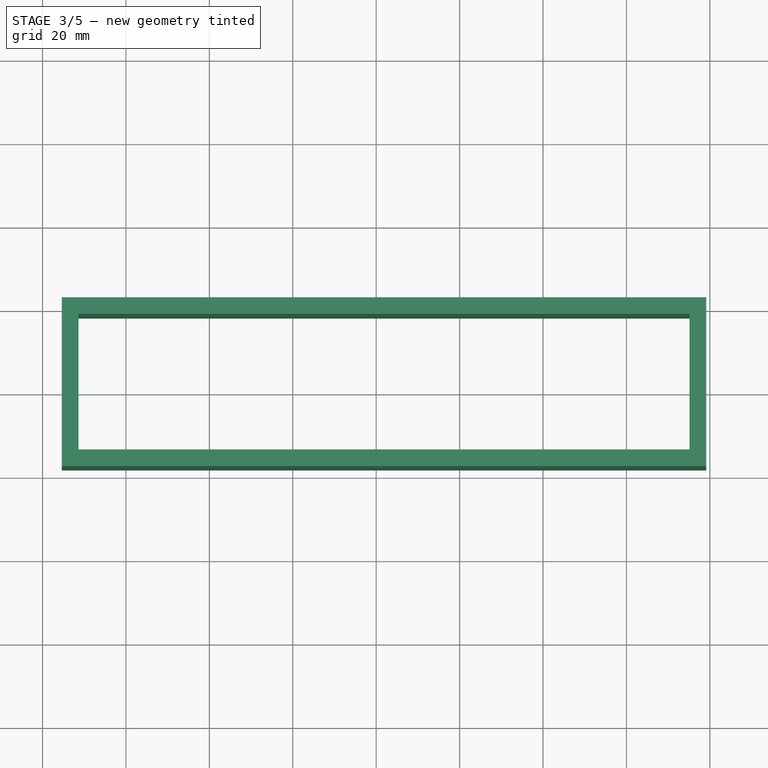
[diagram: stage 3 of 5 — top view after this stage's code; geometry added in this stage tinted green]
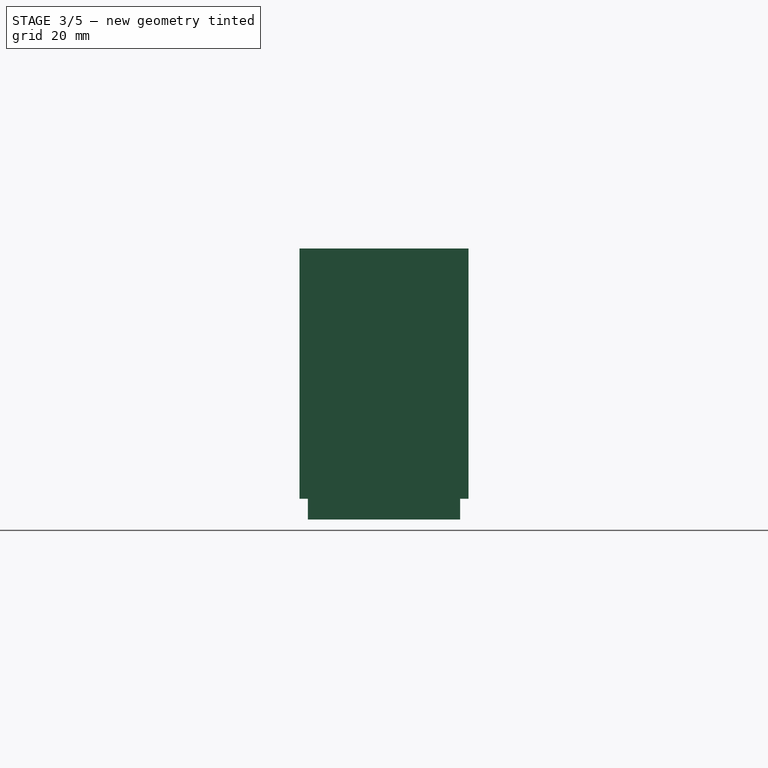
[diagram: stage 3 of 5 — right view after this stage's code; geometry added in this stage tinted green]
FEATURE [Sketcher::SketchObject] Sketch016  label="PCB mount holes"
  ArcFitTolerance = 1e-06
  AttachmentSupport = -> [DatumPlane004]
  ExternalGeometry = -> [Binder001]
  FullyConstrained = true
  MakeInternals = false
  MapMode = 5
  Placement = pos=(0,-4.446e-13,11.4) rot=(1,0,0;3.14159rad)
  sketch-geometry (20):
    g0: LineSegment StartX=-53.5 StartY=-18.2501 StartZ=0 EndX=-52 EndY=-18.2501 EndZ=0
    g1: LineSegment StartX=-52 StartY=-18.2501 StartZ=0 EndX=-52 EndY=-16.7501 EndZ=0
    g2: LineSegment StartX=-52 StartY=-16.7501 StartZ=0 EndX=-53.5 EndY=-16.7501 EndZ=0
    g3: LineSegment StartX=-53.5 StartY=-16.7501 StartZ=0 EndX=-53.5 EndY=-18.2501 EndZ=0
    g4: GeomPoint [constr] X=-52.75 Y=-17.5001 Z=0
    g5: LineSegment StartX=-53.5 StartY=9.74994 StartZ=0 EndX=-52 EndY=9.74994 EndZ=0
    g6: LineSegment StartX=-52 StartY=9.74994 StartZ=0 EndX=-52 EndY=11.2499 EndZ=0
    g7: LineSegment StartX=-52 StartY=11.2499 StartZ=0 EndX=-53.5 EndY=11.2499 EndZ=0
    g8: LineSegment StartX=-53.5 StartY=11.2499 StartZ=0 EndX=-53.5 EndY=9.74994 EndZ=0
    g9: GeomPoint [constr] X=-52.75 Y=10.4999 Z=0
    g10: LineSegment StartX=54.75 StartY=-18.2501 StartZ=0 EndX=56.25 EndY=-18.2501 EndZ=0
    g11: LineSegment StartX=56.25 StartY=-18.2501 StartZ=0 EndX=56.25 EndY=-16.7501 EndZ=0
    g12: LineSegment StartX=56.25 StartY=-16.7501 StartZ=0 EndX=54.75 EndY=-16.7501 EndZ=0
    g13: LineSegment StartX=54.75 StartY=-16.7501 StartZ=0 EndX=54.75 EndY=-18.2501 EndZ=0
    g14: GeomPoint [constr] X=55.5 Y=-17.5001 Z=0
    g15: LineSegment StartX=54.75 StartY=9.74993 StartZ=0 EndX=56.25 EndY=9.74993 EndZ=0
    g16: LineSegment StartX=56.25 StartY=9.74993 StartZ=0 EndX=56.25 EndY=11.2499 EndZ=0
    g17: LineSegment StartX=56.25 StartY=11.2499 StartZ=0 EndX=54.75 EndY=11.2499 EndZ=0
    g18: LineSegment StartX=54.75 StartY=11.2499 StartZ=0 EndX=54.75 EndY=9.74993 EndZ=0
    g19: GeomPoint [constr] X=55.5 Y=10.4999 Z=0
  constraints (48):
    c: Coincident(g0,g1)
    c: Coincident(g1,g2)
    c: Coincident(g2,g3)
    c: Coincident(g3,g0)
    c: Horizontal(g0)
    c: Horizontal(g2)
    c: Vertical(g1)
    c: Vertical(g3)
    c: Symmetric(g2,g0,g4)
    c: Distance(g1,g3) = 1.5
    c: Distance(g0,g2) = 1.5
    c: Coincident(g4,g-3)
    c: Coincident(g5,g6)
    c: Coincident(g6,g7)
    c: Coincident(g7,g8)
    c: Coincident(g8,g5)
    c: Horizontal(g5)
    c: Horizontal(g7)
    c: Vertical(g6)
    c: Vertical(g8)
    c: Symmetric(g7,g5,g9)
    c: Distance(g6,g8) = 1.5
    c: Distance(g5,g7) = 1.5
    c: Coincident(g9,g-4)
    c: Coincident(g10,g11)
    c: Coincident(g11,g12)
    c: Coincident(g12,g13)
    c: Coincident(g13,g10)
    c: Horizontal(g10)
    c: Horizontal(g12)
    c: Vertical(g11)
    c: Vertical(g13)
    c: Symmetric(g12,g10,g14)
    c: Distance(g11,g13) = 1.5
    c: Distance(g10,g12) = 1.5
    c: Coincident(g14,g-5)
    c: Coincident(g15,g16)
    c: Coincident(g16,g17)
    c: Coincident(g17,g18)
    c: Coincident(g18,g15)
    c: Horizontal(g15)
    c: Horizontal(g17)
    c: Vertical(g16)
    c: Vertical(g18)
    c: Symmetric(g17,g15,g19)
    c: Distance(g16,g18) = 1.5
    c: Distance(g15,g17) = 1.5
    c: Coincident(g19,g-6)
FEATURE [PartDesign::Pocket] Pocket004
  BaseFeature = -> Pad007
  Direction = (0,-3.9e-14,1)
  Length = 5
  Length2 = 5
  Placement = pos=(0,2.183e-13,-5.60002) rot=(1,0,0;3.14159rad)
  Profile = -> Sketch016
  ReferenceAxis = -> Sketch016 [N_Axis]
  Refine = true
  Reversed = true
  Suppressed = false
  Type = 0
FEATURE [Sketcher::SketchObject] Sketch017
  ArcFitTolerance = 1e-06
  AttachmentSupport = -> [DatumPlane004]
  ExternalGeometry = -> [Pocket004]
  FullyConstrained = true
  MakeInternals = false
  MapMode = 5
  Placement = pos=(0,-4.446e-13,11.4) rot=(1,0,0;3.14159rad)
  sketch-geometry (8):
    g0: LineSegment StartX=-75.375 StartY=18.2499 StartZ=0 EndX=-75.375 EndY=-22.2501 EndZ=0
    g1: LineSegment StartX=-75.375 StartY=-22.2501 StartZ=0 EndX=79.125 EndY=-22.2501 EndZ=0
    g2: LineSegment StartX=79.125 StartY=-22.2501 StartZ=0 EndX=79.125 EndY=18.2499 EndZ=0
    g3: LineSegment StartX=79.125 StartY=18.2499 StartZ=0 EndX=-75.375 EndY=18.2499 EndZ=0
    g4: LineSegment StartX=-73.375 StartY=16.2499 StartZ=0 EndX=-73.375 EndY=-20.2501 EndZ=0
    g5: LineSegment StartX=-73.375 StartY=-20.2501 StartZ=0 EndX=77.125 EndY=-20.2501 EndZ=0
    g6: LineSegment StartX=77.125 StartY=-20.2501 StartZ=0 EndX=77.125 EndY=16.2499 EndZ=0
    g7: LineSegment StartX=77.125 StartY=16.2499 StartZ=0 EndX=-73.375 EndY=16.2499 EndZ=0
  constraints (22):
    c: Coincident(g0,g1)
    c: Coincident(g1,g2)
    c: Coincident(g2,g3)
    c: Coincident(g3,g0)
    c: Vertical(g0)
    c: Vertical(g2)
    c: Horizontal(g1)
    c: Horizontal(g3)
    c: Coincident(g0,g-6)
    c: Coincident(g1,g-5)
    c: Coincident(g4,g5)
    c: Coincident(g5,g6)
    c: Coincident(g6,g7)
    c: Coincident(g7,g4)
    c: Vertical(g4)
    c: Vertical(g6)
    c: Horizontal(g5)
    c: Horizontal(g7)
    c: DistanceY(g1,g5) = 2
    c: DistanceX(g5,g1) = 2
    c: DistanceY(g4,g0) = 2
    c: DistanceX(g0,g4) = 2
FEATURE [PartDesign::Pad] Pad008
  BaseFeature = -> Pocket004
  Direction = (0,3.9e-14,-1)
  Length = 10
  Length2 = 10
  Placement = pos=(0,2.183e-13,-5.60002) rot=(1,0,0;3.14159rad)
  Profile = -> Sketch017
  ReferenceAxis = -> Sketch017 [N_Axis]
  Refine = true
  Reversed = true
  Suppressed = false
  Type = 0
FEATURE [Sketcher::SketchObject] Sketch019
  ArcFitTolerance = 1e-06
  AttachmentSupport = -> [DatumPlane004]
  ExternalGeometry = -> [Binder001]
  FullyConstrained = true
  MakeInternals = false
  MapMode = 5
  Placement = pos=(0,-4.446e-13,11.4) rot=(1,0,0;3.14159rad)
  sketch-geometry (10):
    g0: LineSegment StartX=73.25 StartY=-18.2501 StartZ=0 EndX=74.75 EndY=-18.2501 EndZ=0
    g1: LineSegment StartX=74.75 StartY=-18.2501 StartZ=0 EndX=74.75 EndY=-16.7501 EndZ=0
    g2: LineSegment StartX=74.75 StartY=-16.7501 StartZ=0 EndX=73.25 EndY=-16.7501 EndZ=0
    g3: LineSegment StartX=73.25 StartY=-16.7501 StartZ=0 EndX=73.25 EndY=-18.2501 EndZ=0
    g4: GeomPoint [constr] X=74 Y=-17.5001 Z=0
    g5: LineSegment StartX=73.25 StartY=9.74993 StartZ=0 EndX=74.75 EndY=9.74993 EndZ=0
    g6: LineSegment StartX=74.75 StartY=9.74993 StartZ=0 EndX=74.75 EndY=11.2499 EndZ=0
    g7: LineSegment StartX=74.75 StartY=11.2499 StartZ=0 EndX=73.25 EndY=11.2499 EndZ=0
    g8: LineSegment StartX=73.25 StartY=11.2499 StartZ=0 EndX=73.25 EndY=9.74993 EndZ=0
    g9: GeomPoint [constr] X=74 Y=10.4999 Z=0
  constraints (24):
    c: Coincident(g0,g1)
    c: Coincident(g1,g2)
    c: Coincident(g2,g3)
    c: Coincident(g3,g0)
    c: Horizontal(g0)
    c: Horizontal(g2)
    c: Vertical(g1)
    c: Vertical(g3)
    c: Symmetric(g2,g0,g4)
    c: Distance(g1,g3) = 1.5
    c: Distance(g0,g2) = 1.5
    c: Coincident(g4,g-3)
    c: Coincident(g5,g6)
    c: Coincident(g6,g7)
    c: Coincident(g7,g8)
    c: Coincident(g8,g5)
    c: Horizontal(g5)
    c: Horizontal(g7)
    c: Vertical(g6)
    c: Vertical(g8)
    c: Symmetric(g7,g5,g9)
    c: Distance(g6,g8) = 1.5
    c: Distance(g5,g7) = 1.5
    c: Coincident(g9,g-4)
FEATURE [PartDesign::Pocket] Pocket005
  BaseFeature = -> Pad008
  Direction = (0,-3.9e-14,1)
  Length = 3
  Length2 = 5
  Placement = pos=(0,2.183e-13,-5.60002) rot=(1,0,0;3.14159rad)
  Profile = -> Sketch019
  ReferenceAxis = -> Sketch019 [N_Axis]
  Refine = true
  Reversed = true
  Suppressed = false
  Type = 0
FEATURE [PartDesign::SubShapeBinder] Binder003
  BindCopyOnChange = 0
  BindMode = 0
  ClaimChildren = false
  Context = -> Body003 [Binder003.]
  Fuse = false
  MakeFace = true
  OffsetFill = false
  OffsetIntersection = false
  OffsetJoinType = 0
  OffsetOpenResult = false
  PartialLoad = false
  Refine = true
  Relative = true
  Support = -> [Body001]
  _Version = 2
FEATURE [PartDesign::Plane] DatumPlane006
  Length = 60
  Placement = pos=(0,-8.352e-13,21.4) rot=(0,0,1;0rad)
  ResizeMode = 0
  Width = 60
FEATURE [Sketcher::SketchObject] Sketch021
  ArcFitTolerance = 1e-06
  AttachmentSupport = -> [DatumPlane006]
  ExternalGeometry = -> [Binder003]
  FullyConstrained = true
  MakeInternals = false
  MapMode = 5
  Placement = pos=(0,-8.352e-13,21.4) rot=(0,0,1;0rad)
  sketch-geometry (8):
    g0: LineSegment StartX=-73.375 StartY=20.2501 StartZ=0 EndX=-73.375 EndY=-16.2499 EndZ=0
    g1: LineSegment StartX=-73.375 StartY=-16.2499 StartZ=0 EndX=77.125 EndY=-16.2499 EndZ=0
    g2: LineSegment StartX=77.125 StartY=-16.2499 StartZ=0 EndX=77.125 EndY=20.2501 EndZ=0
    g3: LineSegment StartX=77.125 StartY=20.2501 StartZ=0 EndX=-73.375 EndY=20.2501 EndZ=0
    g4: LineSegment StartX=-71.375 StartY=18.2501 StartZ=0 EndX=-71.375 EndY=-14.2499 EndZ=0
    g5: LineSegment StartX=-71.375 StartY=-14.2499 StartZ=0 EndX=75.125 EndY=-14.2499 EndZ=0
    g6: LineSegment StartX=75.125 StartY=-14.2499 StartZ=0 EndX=75.125 EndY=18.2501 EndZ=0
    g7: LineSegment StartX=75.125 StartY=18.2501 StartZ=0 EndX=-71.375 EndY=18.2501 EndZ=0
  constraints (22):
    c: Coincident(g0,g1)
    c: Coincident(g1,g2)
    c: Coincident(g2,g3)
    c: Coincident(g3,g0)
    c: Vertical(g0)
    c: Vertical(g2)
    c: Horizontal(g1)
    c: Horizontal(g3)
    c: Coincident(g0,g-3)
    c: Coincident(g1,g-4)
    c: Coincident(g4,g5)
    c: Coincident(g5,g6)
    c: Coincident(g6,g7)
    c: Coincident(g7,g4)
    c: Vertical(g4)
    c: Vertical(g6)
    c: Horizontal(g5)
    c: Horizontal(g7)
    c: Distance(g2,g6) = 2
    c: Distance(g6,g3) = 2
    c: DistanceY(g0,g4) = 2
    c: DistanceX(g0,g4) = 2
FEATURE [PartDesign::Pad] Pad010
  Direction = (0,-3.9e-14,1)
  Length = 5
  Length2 = 10
  Placement = pos=(0,-8.352e-13,21.4) rot=(0,0,1;0rad)
  Profile = -> Sketch021
  ReferenceAxis = -> Sketch021 [N_Axis]
  Refine = true
  Reversed = true
  Suppressed = false
  Type = 0
FEATURE [Sketcher::SketchObject] Sketch022
  ArcFitTolerance = 1e-06
  AttachmentSupport = -> [DatumPlane006]
  ExternalGeometry = -> [Binder003,Pad010]
  FullyConstrained = true
  MakeInternals = false
  MapMode = 5
  Placement = pos=(0,-8.352e-13,21.4) rot=(0,0,1;0rad)
  sketch-geometry (8):
    g0: LineSegment StartX=-75.375 StartY=22.2501 StartZ=0 EndX=-75.375 EndY=-18.2499 EndZ=0
    g1: LineSegment StartX=-75.375 StartY=-18.2499 StartZ=0 EndX=79.125 EndY=-18.2499 EndZ=0
    g2: LineSegment StartX=79.125 StartY=-18.2499 StartZ=0 EndX=79.125 EndY=22.2501 EndZ=0
    g3: LineSegment StartX=79.125 StartY=22.2501 StartZ=0 EndX=-75.375 EndY=22.2501 EndZ=0
    g4: LineSegment StartX=75.125 StartY=18.2501 StartZ=0 EndX=-71.375 EndY=18.2501 EndZ=0
    g5: LineSegment StartX=-71.375 StartY=18.2501 StartZ=0 EndX=-71.375 EndY=-14.2499 EndZ=0
    g6: LineSegment StartX=-71.375 StartY=-14.2499 StartZ=0 EndX=75.125 EndY=-14.2499 EndZ=0
    g7: LineSegment StartX=75.125 StartY=-14.2499 StartZ=0 EndX=75.125 EndY=18.2501 EndZ=0
  constraints (20):
    c: Coincident(g0,g1)
    c: Coincident(g1,g2)
    c: Coincident(g2,g3)
    c: Coincident(g3,g0)
    c: Vertical(g0)
    c: Vertical(g2)
    c: Horizontal(g1)
    c: Horizontal(g3)
    c: Coincident(g0,g-3)
    c: Coincident(g1,g-5)
    c: Coincident(g4,g5)
    c: Coincident(g5,g6)
    c: Coincident(g6,g7)
    c: Coincident(g7,g4)
    c: Horizontal(g4)
    c: Horizontal(g6)
    c: Vertical(g5)
    c: Vertical(g7)
    c: Coincident(g4,g-6)
    c: Coincident(g5,g-4)
FEATURE [PartDesign::Pad] Pad011
  BaseFeature = -> Pad010
  Direction = (0,-3.9e-14,1)
  Length = 60
  Length2 = 10
  Placement = pos=(0,-8.352e-13,21.4) rot=(0,0,1;0rad)
  Profile = -> Sketch022
  ReferenceAxis = -> Sketch022 [N_Axis]
  Refine = true
  Suppressed = false
  Type = 0
FEATURE [Sketcher::SketchObject] Sketch024
  ArcFitTolerance = 1e-06
  AttachmentSupport = -> [Pocket005]
  ExternalGeometry = -> [Pocket005]
  FullyConstrained = true
  MakeInternals = false
  MapMode = 5
  Placement = pos=(0,-4.447e-13,11.4) rot=(0,0,1;0rad)
  sketch-geometry (2):
    g0: Circle CenterX=68.75 CenterY=-9.49993 CenterZ=0 NormalX=0 NormalY=0 NormalZ=1 AngleXU=0 Radius=0.6
    g1: LineSegment [constr] StartX=68.75 StartY=3.50007 StartZ=0 EndX=68.75 EndY=-9.49993 EndZ=0
  constraints (5):
    c: PointOnObject(g0,g-3)
    c: Diameter(g0) = 1.2
    c: Coincident(g1,g-3)
    c: Vertical(g1)
    c: Coincident(g1,g0)
FEATURE [PartDesign::Pocket] Pocket006
  BaseFeature = -> Pocket005
  Direction = (0,3.94e-14,-1)
  Length = 0
  Length2 = 5
  Placement = pos=(0,2.183e-13,-5.60002) rot=(1,0,0;3.14159rad)
  Profile = -> Sketch024
  ReferenceAxis = -> Sketch024 [N_Axis]
  Refine = true
  Suppressed = false
  Type = 3
  UpToFace = -> Pocket005 [Face40]
FEATURE [Sketcher::SketchObject] Sketch025
  ArcFitTolerance = 1e-06
  AttachmentSupport = -> [Pocket006]
  ExternalGeometry = -> [Pocket006]
  FullyConstrained = true
  MakeInternals = false
  MapMode = 5
  Placement = pos=(0,-16.2499,-5.60002) rot=(-1,0,0;1.5708rad)
  sketch-geometry (2):
    g0: Circle CenterX=-73.375 CenterY=-24 CenterZ=0 NormalX=0 NormalY=0 NormalZ=1 AngleXU=0 Radius=0.6
    g1: Circle CenterX=77.125 CenterY=-24 CenterZ=0 NormalX=0 NormalY=0 NormalZ=1 AngleXU=0 Radius=0.6
  constraints (6):
    c: Diameter(g0) = 1.2
    c: PointOnObject(g0,g-4)
    c: PointOnObject(g1,g-3)
    c: DistanceY(g-3,g1) = 3
    c: Diameter(g1) = 1.2
    c: DistanceY(g-4,g0) = 3
FEATURE [PartDesign::Pocket] Pocket007
  BaseFeature = -> Pocket006
  Direction = (0,-1,-3.91e-14)
  Length = 0
  Length2 = 5
  Placement = pos=(0,2.183e-13,-5.60002) rot=(1,0,0;3.14159rad)
  Profile = -> Sketch025
  ReferenceAxis = -> Sketch025 [N_Axis]
  Refine = true
  Reversed = true
  Suppressed = false
  Type = 3
  UpToFace = -> Pocket006 [Face57]
FEATURE [PartDesign::Body] Body004  label="Knob cover v2"
  AllowCompound = false
  Group = -> [Binder004,DatumPlane007,Sketch033,Pad015,Chamfer003]
  Origin = -> Origin004
  Tip = -> Chamfer003
FEATURE [PartDesign::Plane] DatumPlane008
  AttachmentSupport = -> [Pocket007]
  Length = 172.078
  MapMode = 5
  Placement = pos=(0,22.2501,-5.60002) rot=(-1,0,0;1.5708rad)
  ResizeMode = 0
  Width = 67.5784
FEATURE [Sketcher::SketchObject] Sketch034
  ArcFitTolerance = 1e-06
  AttachmentSupport = -> [DatumPlane008]
  ExternalGeometry = -> [Pocket007]
  FullyConstrained = true
  MakeInternals = false
  MapMode = 5
  Placement = pos=(0,22.2501,-5.60002) rot=(-1,0,0;1.5708rad)
  sketch-geometry (8):
    g0: LineSegment StartX=-65.375 StartY=-5 StartZ=0 EndX=-65.375 EndY=-27 EndZ=0
    g1: LineSegment StartX=-65.375 StartY=-27 StartZ=0 EndX=-57.375 EndY=-27 EndZ=0
    g2: LineSegment StartX=-57.375 StartY=-27 StartZ=0 EndX=-57.375 EndY=-5 EndZ=0
    g3: LineSegment StartX=-57.375 StartY=-5 StartZ=0 EndX=-65.375 EndY=-5 EndZ=0
    g4: LineSegment StartX=61.125 StartY=-5 StartZ=0 EndX=61.125 EndY=-27 EndZ=0
    g5: LineSegment StartX=61.125 StartY=-27 StartZ=0 EndX=69.125 EndY=-27 EndZ=0
    g6: LineSegment StartX=69.125 StartY=-27 StartZ=0 EndX=69.125 EndY=-5 EndZ=0
    g7: LineSegment StartX=69.125 StartY=-5 StartZ=0 EndX=61.125 EndY=-5 EndZ=0
  constraints (24):
    c: Coincident(g0,g1)
    c: Coincident(g1,g2)
    c: Coincident(g2,g3)
    c: Coincident(g3,g0)
    c: Vertical(g0)
    c: Vertical(g2)
    c: Horizontal(g1)
    c: Horizontal(g3)
    c: PointOnObject(g1,g-3)
    c: Coincident(g4,g5)
    c: Coincident(g5,g6)
    c: Coincident(g6,g7)
    c: Coincident(g7,g4)
    c: Vertical(g4)
    c: Vertical(g6)
    c: Horizontal(g5)
    c: Horizontal(g7)
    c: PointOnObject(g5,g-3)
    c: Equal(g3,g7)
    c: Equal(g2,g6)
    c: DistanceX(g5,g-3) = 10
    c: DistanceX(g-3,g0) = 10
    c: DistanceX(g3,g3) = 8
    c: DistanceY(g6,g6) = 22
FEATURE [PartDesign::Plane] DatumPlane009
  AttachmentOffset = pos=(0,0,15) rot=(0,0,1;0rad)
  AttachmentSupport = -> [Pocket007]
  Length = 172.078
  MapMode = 5
  Placement = pos=(0,37.2501,-5.60002) rot=(-1,0,0;1.5708rad)
  ResizeMode = 0
  Width = 67.5784
FEATURE [Sketcher::SketchObject] Sketch035
  ArcFitTolerance = 1e-06
  AttachmentSupport = -> [DatumPlane009]
  ExternalGeometry = -> [Sketch034]
  FullyConstrained = true
  MakeInternals = false
  MapMode = 5
  Placement = pos=(0,37.2501,-5.60002) rot=(-1,0,0;1.5708rad)
  sketch-geometry (8):
    g0: LineSegment StartX=-65.375 StartY=-25 StartZ=0 EndX=-65.375 EndY=-27 EndZ=0
    g1: LineSegment StartX=-65.375 StartY=-27 StartZ=0 EndX=-57.375 EndY=-27 EndZ=0
    g2: LineSegment StartX=-57.375 StartY=-27 StartZ=0 EndX=-57.375 EndY=-25 EndZ=0
    g3: LineSegment StartX=-57.375 StartY=-25 StartZ=0 EndX=-65.375 EndY=-25 EndZ=0
    g4: LineSegment StartX=61.125 StartY=-25 StartZ=0 EndX=61.125 EndY=-27 EndZ=0
    g5: LineSegment StartX=61.125 StartY=-27 StartZ=0 EndX=69.125 EndY=-27 EndZ=0
    g6: LineSegment StartX=69.125 StartY=-27 StartZ=0 EndX=69.125 EndY=-25 EndZ=0
    g7: LineSegment StartX=69.125 StartY=-25 StartZ=0 EndX=61.125 EndY=-25 EndZ=0
  constraints (20):
    c: Coincident(g0,g1)
    c: Coincident(g1,g2)
    c: Coincident(g2,g3)
    c: Coincident(g3,g0)
    c: Vertical(g0)
    c: Vertical(g2)
    c: Horizontal(g3)
    c: Coincident(g1,g-3)
    c: Coincident(g4,g5)
    c: Coincident(g5,g6)
    c: Coincident(g6,g7)
    c: Coincident(g7,g4)
    c: Vertical(g4)
    c: Vertical(g6)
    c: Horizontal(g7)
    c: Coincident(g5,g-4)
    c: Coincident(g-4,g4)
    c: Coincident(g0,g-3)
    c: Equal(g2,g4)
    c: DistanceY(g2,g2) = 2
FEATURE [PartDesign::AdditiveLoft] AdditiveLoft002
  BaseFeature = -> Pocket007
  Closed = false
  Placement = pos=(0,2.183e-13,-5.60002) rot=(1,0,0;3.14159rad)
  Profile = -> Sketch035
  Refine = true
  Ruled = false
  Sections = -> [Sketch034]
  Suppressed = false
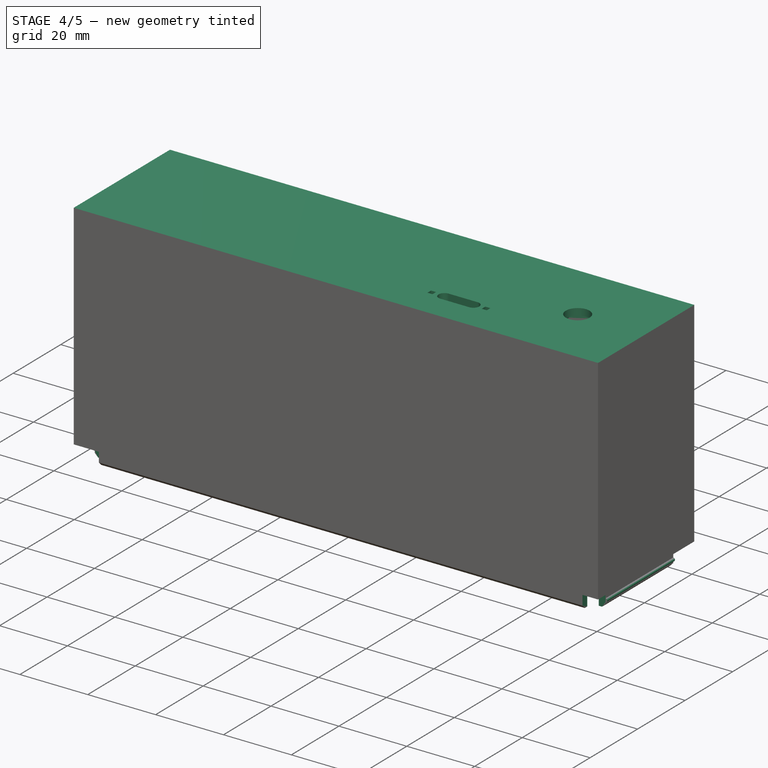
[diagram: stage 4 of 5 — iso view after this stage's code; geometry added in this stage tinted green]
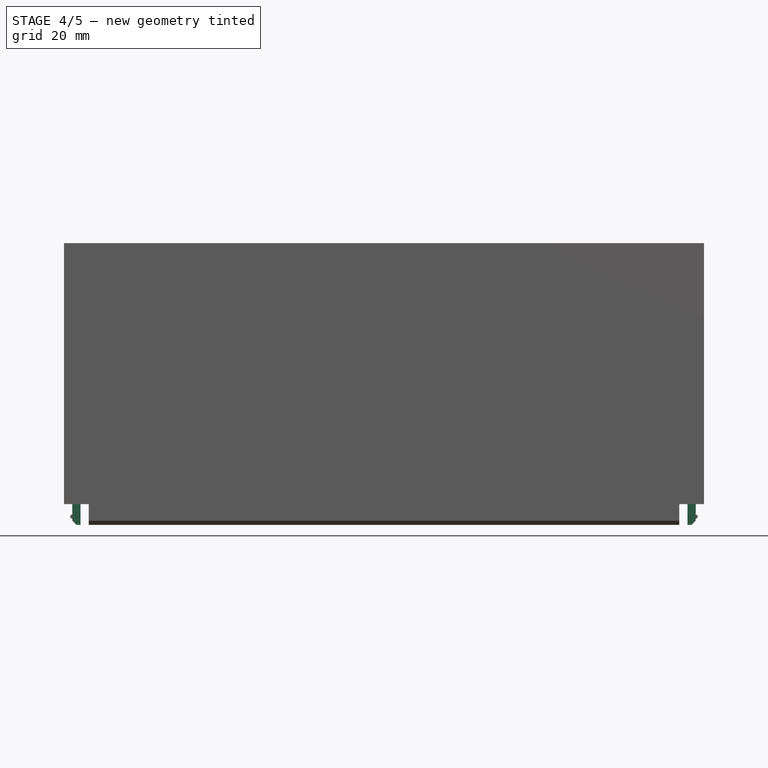
[diagram: stage 4 of 5 — front view after this stage's code; geometry added in this stage tinted green]
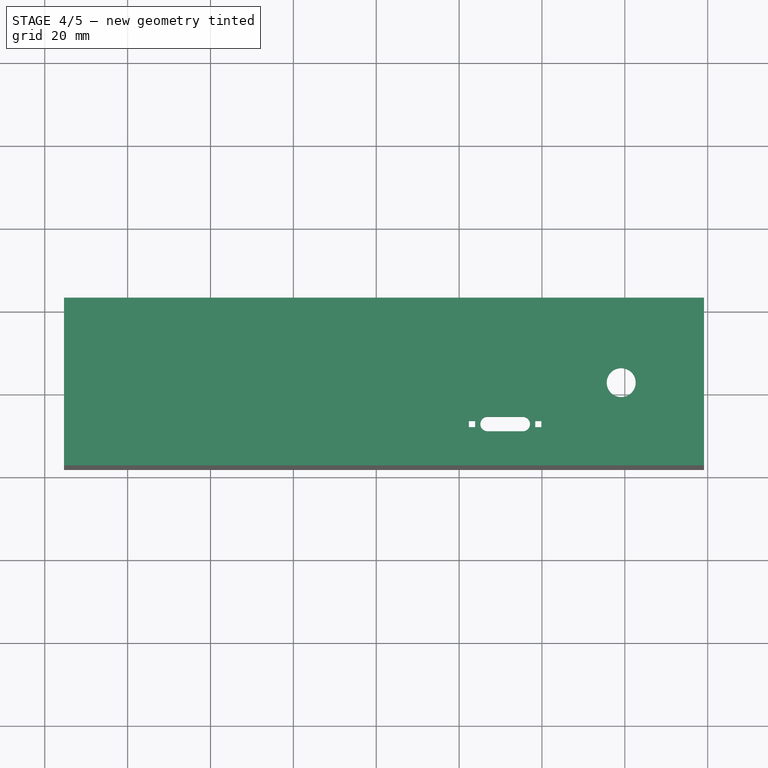
[diagram: stage 4 of 5 — top view after this stage's code; geometry added in this stage tinted green]
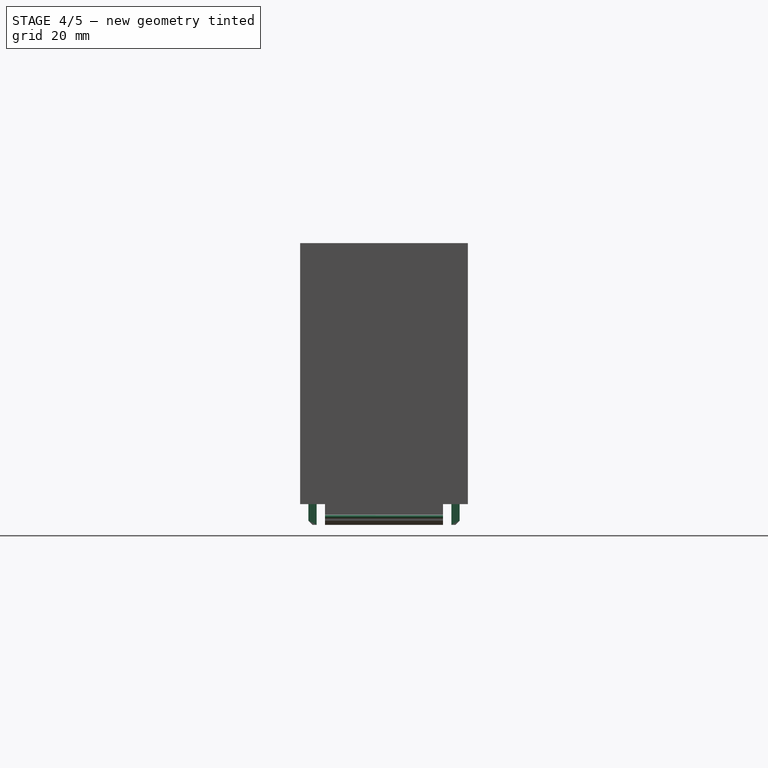
[diagram: stage 4 of 5 — right view after this stage's code; geometry added in this stage tinted green]
FEATURE [Sketcher::SketchObject] Sketch026
  ArcFitTolerance = 1e-06
  AttachmentSupport = -> [Pad011]
  ExternalGeometry = -> [Pad011]
  FullyConstrained = true
  MakeInternals = false
  MapMode = 5
  Placement = pos=(0,20.2501,21.4) rot=(0,0.707107,0.707107;3.14159rad)
  sketch-geometry (2):
    g0: Circle CenterX=73.375 CenterY=-3 CenterZ=0 NormalX=0 NormalY=0 NormalZ=1 AngleXU=0 Radius=0.5
    g1: Circle CenterX=-77.125 CenterY=-3 CenterZ=0 NormalX=0 NormalY=0 NormalZ=1 AngleXU=0 Radius=0.5
  constraints (6):
    c: PointOnObject(g0,g-3)
    c: Diameter(g1) = 1
    c: PointOnObject(g1,g-4)
    c: Diameter(g0) = 1
    c: DistanceY(g0,g-3) = 3
    c: Distance(g1,g-1) = 3
FEATURE [PartDesign::Pad] Pad013
  BaseFeature = -> Pad011
  Direction = (0,1,1.17e-13)
  Length = 10
  Length2 = 10
  Placement = pos=(0,-8.352e-13,21.4) rot=(0,0,1;0rad)
  Profile = -> Sketch026
  ReferenceAxis = -> Sketch026 [N_Axis]
  Refine = true
  Reversed = true
  Suppressed = false
  Type = 3
  UpToFace = -> Pad011 [Face3]
FEATURE [Sketcher::SketchObject] Sketch027
  ArcFitTolerance = 1e-06
  AttachmentSupport = -> [Pad013]
  ExternalGeometry = -> [Pad013]
  FullyConstrained = true
  MakeInternals = false
  MapMode = 5
  Placement = pos=(0,-8.352e-13,21.4) rot=(1,0,0;3.14159rad)
  sketch-geometry (16):
    g0: LineSegment StartX=-75.375 StartY=18.2499 StartZ=0 EndX=-75.375 EndY=12.2499 EndZ=0
    g1: LineSegment StartX=-75.375 StartY=12.2499 StartZ=0 EndX=-69.375 EndY=12.2499 EndZ=0
    g2: LineSegment StartX=-69.375 StartY=12.2499 StartZ=0 EndX=-69.375 EndY=18.2499 EndZ=0
    g3: LineSegment StartX=-69.375 StartY=18.2499 StartZ=0 EndX=-75.375 EndY=18.2499 EndZ=0
    g4: LineSegment StartX=-75.375 StartY=-22.2501 StartZ=0 EndX=-69.375 EndY=-22.2501 EndZ=0
    g5: LineSegment StartX=-69.375 StartY=-22.2501 StartZ=0 EndX=-69.375 EndY=-16.2501 EndZ=0
    g6: LineSegment StartX=-69.375 StartY=-16.2501 StartZ=0 EndX=-75.375 EndY=-16.2501 EndZ=0
    g7: LineSegment StartX=-75.375 StartY=-16.2501 StartZ=0 EndX=-75.375 EndY=-22.2501 EndZ=0
    g8: LineSegment StartX=79.125 StartY=18.2499 StartZ=0 EndX=73.125 EndY=18.2499 EndZ=0
    g9: LineSegment StartX=73.125 StartY=18.2499 StartZ=0 EndX=73.125 EndY=12.2499 EndZ=0
    g10: LineSegment StartX=73.125 StartY=12.2499 StartZ=0 EndX=79.125 EndY=12.2499 EndZ=0
    g11: LineSegment StartX=79.125 StartY=12.2499 StartZ=0 EndX=79.125 EndY=18.2499 EndZ=0
    g12: LineSegment StartX=79.125 StartY=-22.2501 StartZ=0 EndX=79.125 EndY=-16.2501 EndZ=0
    g13: LineSegment StartX=79.125 StartY=-16.2501 StartZ=0 EndX=73.125 EndY=-16.2501 EndZ=0
    g14: LineSegment StartX=73.125 StartY=-16.2501 StartZ=0 EndX=73.125 EndY=-22.2501 EndZ=0
    g15: LineSegment StartX=73.125 StartY=-22.2501 StartZ=0 EndX=79.125 EndY=-22.2501 EndZ=0
  constraints (44):
    c: Coincident(g0,g1)
    c: Coincident(g1,g2)
    c: Coincident(g2,g3)
    c: Coincident(g3,g0)
    c: Vertical(g0)
    c: Vertical(g2)
    c: Horizontal(g1)
    c: Horizontal(g3)
    c: Coincident(g0,g-3)
    c: Coincident(g4,g5)
    c: Coincident(g5,g6)
    c: Coincident(g6,g7)
    c: Coincident(g7,g4)
    c: Horizontal(g4)
    c: Horizontal(g6)
    c: Vertical(g5)
    c: Vertical(g7)
    c: Coincident(g4,g-3)
    c: Coincident(g8,g9)
    c: Coincident(g9,g10)
    c: Coincident(g10,g11)
    c: Coincident(g11,g8)
    c: Horizontal(g8)
    c: Horizontal(g10)
    c: Vertical(g9)
    c: Vertical(g11)
    c: Coincident(g8,g-4)
    c: Coincident(g12,g13)
    c: Coincident(g13,g14)
    c: Coincident(g14,g15)
    c: Coincident(g15,g12)
    c: Vertical(g12)
    c: Vertical(g14)
    c: Horizontal(g13)
    c: Horizontal(g15)
    c: Coincident(g12,g-4)
    c: Equal(g13,g14)
    c: Equal(g14,g10)
    c: Equal(g10,g9)
    c: Equal(g9,g2)
    c: Equal(g2,g1)
    c: Equal(g1,g5)
    c: Equal(g5,g6)
    c: DistanceX(g3,g3) = 6
FEATURE [PartDesign::Pocket] Pocket008
  BaseFeature = -> Pad013
  Direction = (0,-1.17e-13,1)
  Length = 15
  Length2 = 5
  Placement = pos=(0,-8.352e-13,21.4) rot=(0,0,1;0rad)
  Profile = -> Sketch027
  ReferenceAxis = -> Sketch027 [N_Axis]
  Refine = true
  Reversed = true
  Suppressed = false
  Type = 0
FEATURE [PartDesign::Chamfer] Chamfer002
  Angle = 45
  Base = -> Pocket008 [Edge51,Edge77,Edge69,Edge3]
  BaseFeature = -> Pocket008
  ChamferType = 0
  FlipDirection = false
  Placement = pos=(0,-8.352e-13,21.4) rot=(0,0,1;0rad)
  Refine = true
  Size = 1
  Size2 = 1
  SupportTransform = false
  Suppressed = false
  UseAllEdges = false
FEATURE [Sketcher::SketchObject] Sketch028
  ArcFitTolerance = 1e-06
  AttachmentSupport = -> [Chamfer002]
  ExternalGeometry = -> [Chamfer002]
  FullyConstrained = true
  MakeInternals = false
  MapMode = 5
  Placement = pos=(0,-1.0194e-11,81.4) rot=(0,0,1;0rad)
  sketch-geometry (4):
    g0: LineSegment StartX=-75.375 StartY=22.2501 StartZ=0 EndX=-75.375 EndY=-18.2499 EndZ=0
    g1: LineSegment StartX=-75.375 StartY=-18.2499 StartZ=0 EndX=79.125 EndY=-18.2499 EndZ=0
    g2: LineSegment StartX=79.125 StartY=-18.2499 StartZ=0 EndX=79.125 EndY=22.2501 EndZ=0
    g3: LineSegment StartX=79.125 StartY=22.2501 StartZ=0 EndX=-75.375 EndY=22.2501 EndZ=0
  constraints (10):
    c: Coincident(g0,g1)
    c: Coincident(g1,g2)
    c: Coincident(g2,g3)
    c: Coincident(g3,g0)
    c: Vertical(g0)
    c: Vertical(g2)
    c: Horizontal(g1)
    c: Horizontal(g3)
    c: Coincident(g0,g-3)
    c: Coincident(g1,g-4)
FEATURE [PartDesign::Pad] Pad014
  BaseFeature = -> Chamfer002
  Direction = (0,-1.561e-13,1)
  Length = 3
  Length2 = 10
  Placement = pos=(0,-8.352e-13,21.4) rot=(0,0,1;0rad)
  Profile = -> Sketch028
  ReferenceAxis = -> Sketch028 [N_Axis]
  Refine = true
  Suppressed = false
  Type = 0
FEATURE [Sketcher::SketchObject] Sketch029
  ArcFitTolerance = 1e-06
  AttachmentSupport = -> [Pad014]
  ExternalGeometry = -> [Pad014]
  FullyConstrained = true
  MakeInternals = false
  MapMode = 5
  Placement = pos=(0,-1.3107e-11,84.4) rot=(0,0,1;0rad)
  sketch-geometry (1):
    g0: Circle CenterX=59.125 CenterY=1.75006 CenterZ=0 NormalX=0 NormalY=0 NormalZ=1 AngleXU=0 Radius=3.5
  constraints (3):
    c: DistanceX(g0,g-3) = 20
    c: DistanceY(g-3,g0) = 20
    c: Diameter(g0) = 7
FEATURE [PartDesign::Pocket] Pocket009
  BaseFeature = -> Pad014
  Direction = (0,1.948e-13,-1)
  Length = 5
  Length2 = 5
  Placement = pos=(0,-8.352e-13,21.4) rot=(0,0,1;0rad)
  Profile = -> Sketch029
  ReferenceAxis = -> Sketch029 [N_Axis]
  Refine = true
  Suppressed = false
  Type = 0
FEATURE [Sketcher::SketchObject] Sketch030
  ArcFitTolerance = 1e-06
  AttachmentSupport = -> [Pocket009]
  ExternalGeometry = -> [Pocket009]
  FullyConstrained = true
  MakeInternals = false
  MapMode = 5
  Placement = pos=(0,-1.48626e-11,81.4) rot=(1,0,0;3.14159rad)
  sketch-geometry (7):
    g0: LineSegment StartX=59.125 StartY=3.15742 StartZ=0 EndX=54.875 EndY=0.703679 EndZ=0
    g1: LineSegment StartX=54.875 StartY=0.703679 StartZ=0 EndX=54.875 EndY=-4.2038 EndZ=0
    g2: LineSegment StartX=54.875 StartY=-4.2038 StartZ=0 EndX=59.125 EndY=-6.65754 EndZ=0
    g3: LineSegment StartX=59.125 StartY=-6.65754 StartZ=0 EndX=63.375 EndY=-4.2038 EndZ=0
    g4: LineSegment StartX=63.375 StartY=-4.2038 StartZ=0 EndX=63.375 EndY=0.703679 EndZ=0
    g5: LineSegment StartX=63.375 StartY=0.703679 StartZ=0 EndX=59.125 EndY=3.15742 EndZ=0
    g6: Circle [constr] CenterX=59.125 CenterY=-1.75006 CenterZ=0 NormalX=0 NormalY=0 NormalZ=1 AngleXU=0 Radius=4.90748
  constraints (16):
    c: Coincident(g0,g1)
    c: Coincident(g1,g2)
    c: Coincident(g2,g3)
    c: Coincident(g3,g4)
    c: Coincident(g4,g5)
    c: Coincident(g5,g0)
    c: Equal(g0, g1-g5) x5
    c: PointOnObject(g0,g6)
    c: PointOnObject(g1,g6)
    c: PointOnObject(g2,g6)
    c: PointOnObject(g3,g6)
    c: PointOnObject(g4,g6)
    c: PointOnObject(g5,g6)
    c: Coincident(g6,g-3)
    c: Vertical(g0,g6)
    c: Distance(g1,g3) = 8.5
FEATURE [PartDesign::Pocket] Pocket010
  BaseFeature = -> Pocket009
  Direction = (0,-2.339e-13,1)
  Length = 1
  Length2 = 5
  Placement = pos=(0,-8.352e-13,21.4) rot=(0,0,1;0rad)
  Profile = -> Sketch030
  ReferenceAxis = -> Sketch030 [N_Axis]
  Refine = true
  Suppressed = false
  Type = 0
FEATURE [Sketcher::SketchObject] Sketch031
  ArcFitTolerance = 1e-06
  AttachmentSupport = -> [Pocket010]
  ExternalGeometry = -> [Pocket010]
  FullyConstrained = true
  MakeInternals = false
  MapMode = 5
  Placement = pos=(0,-1.8021e-11,84.4) rot=(0,0,1;0rad)
  sketch-geometry (18):
    g0: ArcOfCircle CenterX=26.875 CenterY=-8.24994 CenterZ=0 NormalX=0 NormalY=0 NormalZ=1 AngleXU=0 Radius=1.75 StartAngle=1.5708 EndAngle=4.71239
    g1: ArcOfCircle CenterX=35.375 CenterY=-8.24994 CenterZ=0 NormalX=0 NormalY=0 NormalZ=1 AngleXU=0 Radius=1.75 StartAngle=4.71239 EndAngle=7.85398
    g2: LineSegment StartX=26.875 StartY=-6.49994 StartZ=0 EndX=35.375 EndY=-6.49994 EndZ=0
    g3: LineSegment StartX=26.875 StartY=-9.99994 StartZ=0 EndX=35.375 EndY=-9.99994 EndZ=0
    g4: GeomPoint X=25.125 Y=-8.24994 Z=0
    g5: GeomPoint X=37.125 Y=-8.24994 Z=0
    g6: LineSegment StartX=22.375 StartY=-8.99994 StartZ=0 EndX=23.875 EndY=-8.99994 EndZ=0
    g7: LineSegment StartX=23.875 StartY=-8.99994 StartZ=0 EndX=23.875 EndY=-7.49994 EndZ=0
    g8: LineSegment StartX=23.875 StartY=-7.49994 StartZ=0 EndX=22.375 EndY=-7.49994 EndZ=0
    g9: LineSegment StartX=22.375 StartY=-7.49994 StartZ=0 EndX=22.375 EndY=-8.99994 EndZ=0
    g10: GeomPoint [constr] X=23.125 Y=-8.24994 Z=0
    g11: LineSegment StartX=38.375 StartY=-8.99994 StartZ=0 EndX=39.875 EndY=-8.99994 EndZ=0
    g12: LineSegment StartX=39.875 StartY=-8.99994 StartZ=0 EndX=39.875 EndY=-7.49994 EndZ=0
    g13: LineSegment StartX=39.875 StartY=-7.49994 StartZ=0 EndX=38.375 EndY=-7.49994 EndZ=0
    g14: LineSegment StartX=38.375 StartY=-7.49994 StartZ=0 EndX=38.375 EndY=-8.99994 EndZ=0
    g15: GeomPoint [constr] X=39.125 Y=-8.24994 Z=0
    g16: LineSegment [constr] StartX=23.125 StartY=-8.24994 StartZ=0 EndX=26.875 EndY=-8.24994 EndZ=0
    g17: LineSegment [constr] StartX=39.125 StartY=-8.24994 StartZ=0 EndX=35.375 EndY=-8.24994 EndZ=0
  constraints (44):
    c: Tangent(g0,g2) = 1.5708
    c: Tangent(g0,g3) = -1.5708
    c: Tangent(g1,g2) = 1.5708
    c: Tangent(g1,g3) = -1.5708
    c: Equal(g0,g1)
    c: Horizontal(g3)
    c: DistanceY(g0,g0) = 3.5
    c: PointOnObject(g4,g0)
    c: PointOnObject(g5,g1)
    c: Horizontal(g0,g4)
    c: Horizontal(g5,g1)
    c: DistanceX(g4,g5) = 12
    c: Coincident(g6,g7)
    c: Coincident(g7,g8)
    c: Coincident(g8,g9)
    c: Coincident(g9,g6)
    c: Horizontal(g6)
    c: Horizontal(g8)
    c: Vertical(g7)
    c: Vertical(g9)
    c: Symmetric(g8,g6,g10)
    c: Distance(g7,g9) = 1.5
    c: Distance(g6,g8) = 1.5
    c: Coincident(g11,g12)
    c: Coincident(g12,g13)
    c: Coincident(g13,g14)
    c: Coincident(g14,g11)
    c: Horizontal(g11)
    c: Horizontal(g13)
    c: Vertical(g12)
    c: Vertical(g14)
    c: Symmetric(g13,g11,g15)
    c: Distance(g12,g14) = 1.5
    c: Distance(g11,g13) = 1.5
    c: Horizontal(g10,g0)
    c: Horizontal(g15,g1)
    c: DistanceX(g10,g15) = 16
    c: Coincident(g16,g10)
    c: Coincident(g16,g0)
    c: Coincident(g17,g15)
    c: Coincident(g17,g1)
    c: Equal(g17,g16)
    c: DistanceX(g15,g-3) = 40
    c: DistanceY(g-3,g15) = 10
FEATURE [PartDesign::Pocket] Pocket011
  BaseFeature = -> Pocket010
  Direction = (0,2.729e-13,-1)
  Length = 5
  Length2 = 5
  Placement = pos=(0,-8.352e-13,21.4) rot=(0,0,1;0rad)
  Profile = -> Sketch031
  ReferenceAxis = -> Sketch031 [N_Axis]
  Refine = true
  Suppressed = false
  Type = 0
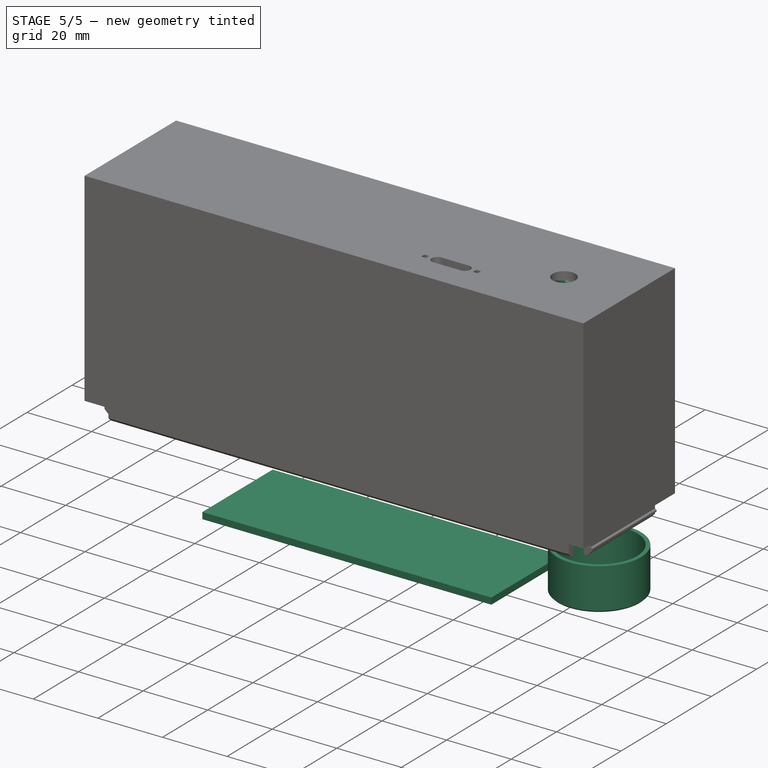
[diagram: stage 5 of 5 — iso view after this stage's code; geometry added in this stage tinted green]
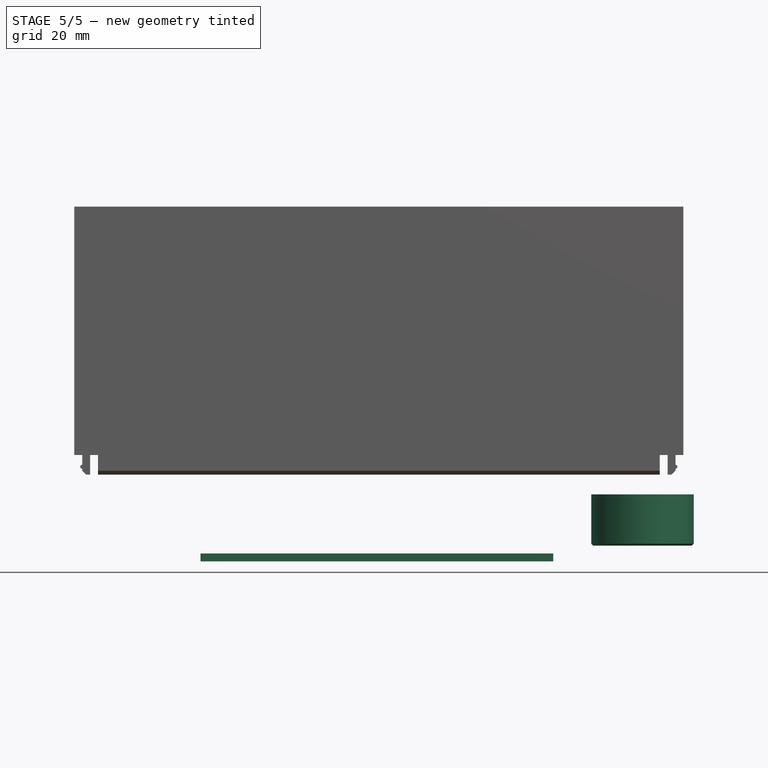
[diagram: stage 5 of 5 — front view after this stage's code; geometry added in this stage tinted green]
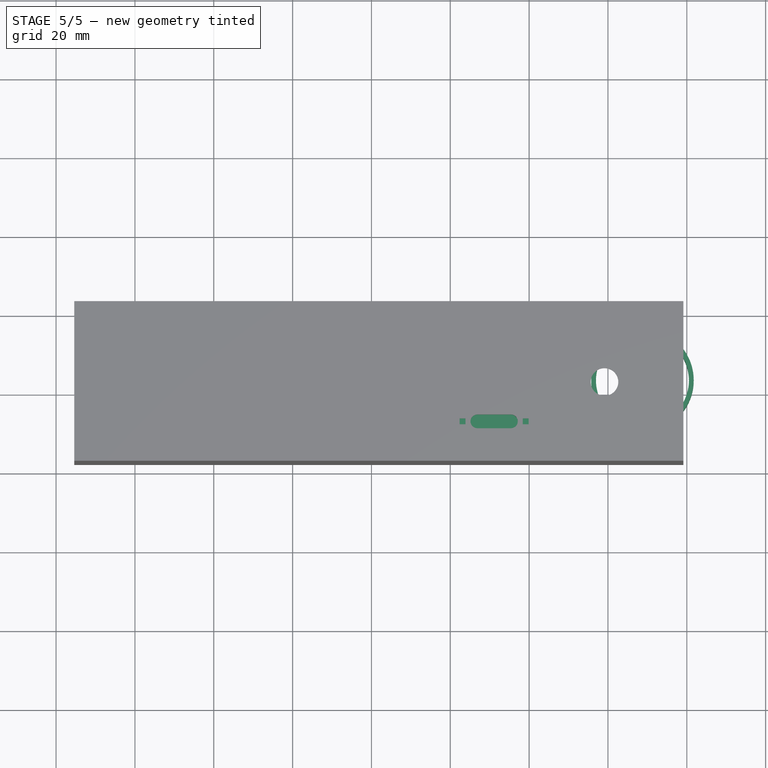
[diagram: stage 5 of 5 — top view after this stage's code; geometry added in this stage tinted green]
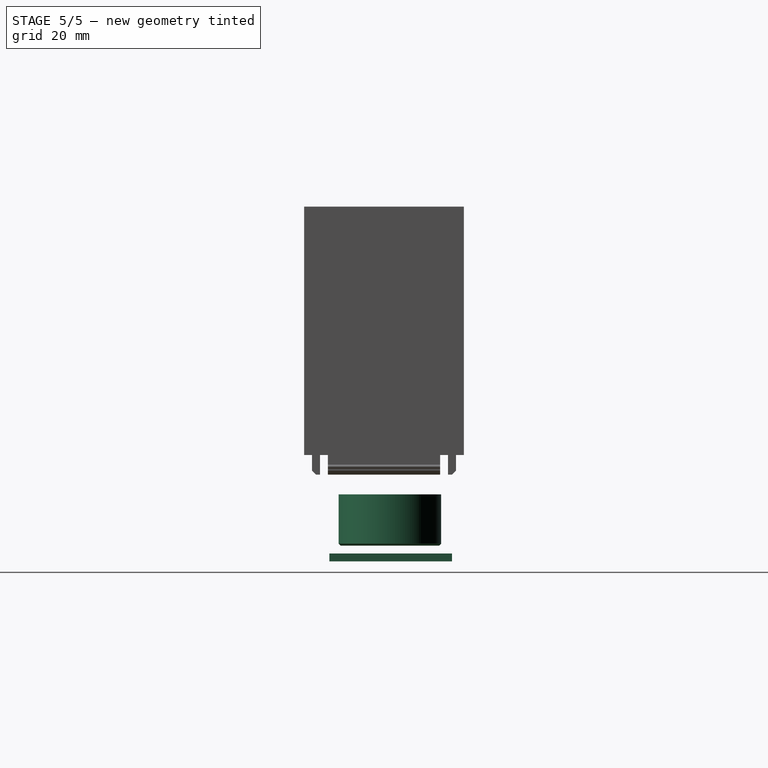
[diagram: stage 5 of 5 — right view after this stage's code; geometry added in this stage tinted green]
FEATURE [App::Link] AssemblyLink
  LinkedObject = -> <external YR_PCB/YR_ASSEMBLED.FCStd>#Assembly
FEATURE [PartDesign::SubShapeBinder] Binder
  BindCopyOnChange = 0
  BindMode = 0
  ClaimChildren = false
  Context = -> Body [Binder.]
  Fuse = false
  MakeFace = true
  OffsetFill = false
  OffsetIntersection = false
  OffsetJoinType = 0
  OffsetOpenResult = false
  PartialLoad = false
  Refine = true
  Relative = true
  Support = -> [AssemblyLink]
  _Version = 2
FEATURE [PartDesign::Plane] DatumPlane
  AttachmentSupport = -> [Binder]
  Length = 102.879
  MapMode = 5
  Placement = pos=(-3e-16,1.404e-13,-3.60002) rot=(1,0,0;3.14159rad)
  ResizeMode = 0
  Width = 63.3791
FEATURE [Sketcher::SketchObject] Sketch
  ArcFitTolerance = 1e-06
  AttachmentSupport = -> [DatumPlane]
  ExternalGeometry = -> [Binder]
  FullyConstrained = true
  MakeInternals = false
  MapMode = 5
  Placement = pos=(-3e-16,1.404e-13,-3.60002) rot=(1,0,0;3.14159rad)
  sketch-geometry (4):
    g0: LineSegment StartX=-43.375 StartY=11.8499 StartZ=0 EndX=-43.375 EndY=-19.2501 EndZ=0
    g1: LineSegment StartX=-43.375 StartY=-19.2501 StartZ=0 EndX=46.125 EndY=-19.2501 EndZ=0
    g2: LineSegment StartX=46.125 StartY=-19.2501 StartZ=0 EndX=46.125 EndY=11.8499 EndZ=0
    g3: LineSegment StartX=46.125 StartY=11.8499 StartZ=0 EndX=-43.375 EndY=11.8499 EndZ=0
  constraints (12):
    c: Coincident(g0,g1)
    c: Coincident(g1,g2)
    c: Coincident(g2,g3)
    c: Coincident(g3,g0)
    c: Vertical(g0)
    c: Vertical(g2)
    c: Horizontal(g1)
    c: Horizontal(g3)
    c: Vertical(g0,g-3)
    c: Horizontal(g0,g-4)
    c: Horizontal(g1,g-6)
    c: Vertical(g1,g-5)
FEATURE [PartDesign::Pad] Pad
  Direction = (0,3.9e-14,-1)
  Length = 2
  Length2 = 10
  Placement = pos=(-3e-16,1.404e-13,-3.60002) rot=(1,0,0;3.14159rad)
  Profile = -> Sketch
  ReferenceAxis = -> Sketch [N_Axis]
  Refine = true
  Suppressed = false
  Type = 0
FEATURE [Sketcher::SketchObject] Sketch032
  ArcFitTolerance = 1e-06
  AttachmentSupport = -> [Pocket011]
  ExternalGeometry = -> [Pocket011]
  FullyConstrained = true
  MakeInternals = false
  MapMode = 5
  Placement = pos=(0,22.2501,21.4) rot=(0,0.707107,0.707107;3.14159rad)
  sketch-geometry (33):
    g0: LineSegment [constr] StartX=12.75 StartY=7.5 StartZ=0 EndX=60.75 EndY=7.5 EndZ=0
    g1: LineSegment [constr] StartX=60.75 StartY=7.5 StartZ=0 EndX=60.75 EndY=55.5 EndZ=0
    g2: LineSegment [constr] StartX=60.75 StartY=55.5 StartZ=0 EndX=12.75 EndY=55.5 EndZ=0
    g3: LineSegment [constr] StartX=12.75 StartY=55.5 StartZ=0 EndX=12.75 EndY=7.5 EndZ=0
    g4: GeomPoint [constr] X=36.75 Y=31.5 Z=0
    g5: Circle [constr] CenterX=36.75 CenterY=31.5 CenterZ=0 NormalX=0 NormalY=0 NormalZ=1 AngleXU=0 Radius=20.5
    g6: Circle CenterX=18.25 CenterY=50 CenterZ=0 NormalX=0 NormalY=0 NormalZ=1 AngleXU=0 Radius=1.45
    g7: Circle CenterX=55.25 CenterY=50 CenterZ=0 NormalX=0 NormalY=0 NormalZ=1 AngleXU=0 Radius=1.45
    g8: Circle CenterX=55.25 CenterY=13 CenterZ=0 NormalX=0 NormalY=0 NormalZ=1 AngleXU=0 Radius=1.45
    g9: Circle CenterX=18.25 CenterY=13 CenterZ=0 NormalX=0 NormalY=0 NormalZ=1 AngleXU=0 Radius=1.45
    g10: LineSegment [constr] StartX=12.75 StartY=55.5 StartZ=0 EndX=60.75 EndY=7.5 EndZ=0
    g11: LineSegment [constr] StartX=60.75 StartY=55.5 StartZ=0 EndX=12.75 EndY=7.5 EndZ=0
    g12: GeomPoint [constr] X=-79.125 Y=31.5 Z=0
    g13: GeomPoint [constr] X=-1.87496 Y=63 Z=0
    g14: LineSegment [constr] StartX=-64.5 StartY=7.5 StartZ=0 EndX=-16.5 EndY=7.5 EndZ=0
    g15: LineSegment [constr] StartX=-16.5 StartY=7.5 StartZ=0 EndX=-16.5 EndY=55.5 EndZ=0
    g16: LineSegment [constr] StartX=-16.5 StartY=55.5 StartZ=0 EndX=-64.5 EndY=55.5 EndZ=0
    g17: LineSegment [constr] StartX=-64.5 StartY=55.5 StartZ=0 EndX=-64.5 EndY=7.5 EndZ=0
    g18: GeomPoint [constr] X=-40.5 Y=31.5 Z=0
    g19: Circle [constr] CenterX=-40.5 CenterY=31.5 CenterZ=0 NormalX=0 NormalY=0 NormalZ=1 AngleXU=0 Radius=20.5
    g20: Circle CenterX=-59 CenterY=50 CenterZ=0 NormalX=0 NormalY=0 NormalZ=1 AngleXU=0 Radius=1.25
    g21: Circle CenterX=-22 CenterY=50 CenterZ=0 NormalX=0 NormalY=0 NormalZ=1 AngleXU=0 Radius=1.25
    g22: Circle CenterX=-22 CenterY=13 CenterZ=0 NormalX=0 NormalY=0 NormalZ=1 AngleXU=0 Radius=1.25
    g23: Circle CenterX=-59 CenterY=13 CenterZ=0 NormalX=0 NormalY=0 NormalZ=1 AngleXU=0 Radius=1.25
    g24: LineSegment [constr] StartX=-64.5 StartY=55.5 StartZ=0 EndX=-16.5 EndY=7.5 EndZ=0
    g25: LineSegment [constr] StartX=-16.5 StartY=55.5 StartZ=0 EndX=-64.5 EndY=7.5 EndZ=0
    g26: GeomPoint [constr] X=-1.87496 Y=-7.1e-15 Z=0
    g27: LineSegment [constr] StartX=-1.87496 StartY=63 StartZ=0 EndX=-79.125 EndY=0 EndZ=0
    g28: LineSegment [constr] StartX=-79.125 StartY=63 StartZ=0 EndX=-1.87496 EndY=-7.1e-15 EndZ=0
    g29: LineSegment [constr] StartX=75.375 StartY=63 StartZ=0 EndX=-1.87496 EndY=-7.1e-15 EndZ=0
    g30: LineSegment [constr] StartX=-1.87496 StartY=63 StartZ=0 EndX=75.375 EndY=0 EndZ=0
    g31: GeomPoint [constr] X=-40.5 Y=31.5 Z=0
    g32: GeomPoint [constr] X=36.75 Y=31.5 Z=0
  constraints (75):
    c: Coincident(g0,g1)
    c: Coincident(g1,g2)
    c: Coincident(g2,g3)
    c: Coincident(g3,g0)
    c: Horizontal(g0)
    c: Horizontal(g2)
    c: Vertical(g1)
    c: Vertical(g3)
    c: Symmetric(g2,g0,g4)
    c: Distance(g1,g3) = 48
    c: Distance(g0,g2) = 48
    c: Coincident(g5,g4)
    c: Diameter(g5) = 41
    c: Equal(g6,g7)
    c: Equal(g7,g8)
    c: Equal(g8,g9)
    c: Diameter(g6) = 2.9
    c: Coincident(g10,g2)
    c: Coincident(g10,g0)
    c: Coincident(g11,g1)
    c: Coincident(g11,g0)
    c: PointOnObject(g6,g10)
    c: PointOnObject(g7,g11)
    c: PointOnObject(g8,g10)
    c: PointOnObject(g9,g11)
    c: Horizontal(g8,g9)
    c: Vertical(g7,g8)
    c: Vertical(g6,g9)
    c: DistanceX(g6,g7) = 37
    c: Symmetric(g-3,g-3,g12)
    c: Symmetric(g-4,g-4,g13)
    c: Coincident(g14,g15)
    c: Coincident(g15,g16)
    c: Coincident(g16,g17)
    c: Coincident(g17,g14)
    c: Horizontal(g14)
    c: Horizontal(g16)
    c: Vertical(g15)
    c: Vertical(g17)
    c: Symmetric(g16,g14,g18)
    c: Distance(g15,g17) = 48
    c: Distance(g14,g16) = 48
    c: Coincident(g19,g18)
    c: Diameter(g19) = 41
    c: Equal(g20,g21)
    c: Equal(g21,g22)
    c: Equal(g22,g23)
    c: Diameter(g20) = 2.5
    c: Coincident(g24,g16)
    c: Coincident(g24,g14)
    c: Coincident(g25,g15)
    c: Coincident(g25,g14)
    c: PointOnObject(g20,g24)
    c: PointOnObject(g21,g25)
    c: PointOnObject(g22,g24)
    c: PointOnObject(g23,g25)
    c: Horizontal(g22,g23)
    c: Vertical(g21,g22)
    c: Vertical(g20,g23)
    c: DistanceX(g20,g21) = 37
    c: Symmetric(g-6,g-6,g26)
    c: Coincident(g27,g13)
    c: Coincident(g27,g-6)
    c: Coincident(g28,g-4)
    c: Coincident(g28,g26)
    c: Coincident(g29,g-5)
    c: Coincident(g29,g26)
    c: Coincident(g30,g13)
    c: Coincident(g30,g-6)
    c: PointOnObject(g31,g28)
    c: PointOnObject(g31,g27)
    c: PointOnObject(g32,g30)
    c: PointOnObject(g32,g29)
    c: Coincident(g4,g32)
    c: Coincident(g31,g18)
FEATURE [PartDesign::SubShapeBinder] Binder004
  BindCopyOnChange = 0
  BindMode = 0
  ClaimChildren = false
  Context = -> Body004 [Binder004.]
  Fuse = false
  MakeFace = true
  OffsetFill = false
  OffsetIntersection = false
  OffsetJoinType = 0
  OffsetOpenResult = false
  PartialLoad = false
  Refine = true
  Relative = true
  Support = -> [Body001]
  _Version = 2
FEATURE [PartDesign::Plane] DatumPlane007
  AttachmentSupport = -> [Binder004]
  Length = 121.362
  MapMode = 5
  Placement = pos=(0,-4.441e-13,11.4) rot=(0,0,1;0rad)
  ResizeMode = 0
  Width = 64.6116
FEATURE [Sketcher::SketchObject] Sketch033
  ArcFitTolerance = 1e-06
  AttachmentSupport = -> [DatumPlane007]
  ExternalGeometry = -> [Binder004]
  FullyConstrained = true
  MakeInternals = false
  MapMode = 5
  Placement = pos=(0,-4.441e-13,11.4) rot=(0,0,1;0rad)
  sketch-geometry (2):
    g0: Circle CenterX=68.75 CenterY=3.50007 CenterZ=0 NormalX=0 NormalY=0 NormalZ=1 AngleXU=0 Radius=13
    g1: Circle CenterX=68.75 CenterY=3.50007 CenterZ=0 NormalX=0 NormalY=0 NormalZ=1 AngleXU=0 Radius=11.8
  constraints (4):
    c: Coincident(g0,g-4)
    c: Coincident(g1,g0)
    c: Diameter(g1) = 23.6
    c: Diameter(g0) = 26
FEATURE [PartDesign::Pad] Pad015
  Direction = (0,-3.9e-14,1)
  Length = 10
  Length2 = 10
  Placement = pos=(0,-4.446e-13,11.4) rot=(0,0,1;0rad)
  Profile = -> Sketch033
  ReferenceAxis = -> Sketch033 [N_Axis]
  Refine = true
  Reversed = true
  Suppressed = false
  Type = 3
  UpToFace = -> Binder004 [Face40]
FEATURE [PartDesign::Chamfer] Chamfer003
  Angle = 45
  Base = -> Pad015 [Edge3]
  BaseFeature = -> Pad015
  ChamferType = 0
  FlipDirection = false
  Placement = pos=(0,-4.446e-13,11.4) rot=(0,0,1;0rad)
  Refine = true
  Size = 0.5
  Size2 = 1
  SupportTransform = false
  Suppressed = false
  UseAllEdges = false
FEATURE [PartDesign::Body] Body001  label="Front"
  AllowCompound = false
  Group = -> [Binder001,DatumPlane001,CopyPad,Sketch001,Pad001,DatumPlane002,Sketch002,Pad002,Sketch003,Pocket,Sketch004,Pocket001,Chamfer,DatumPlane003,Sketch005,DatumPlane004,Sketch006,AdditiveLoft,Sketch007,Sketch008,AdditiveLoft001,Sketch009,Pad003,Sketch010,Pad004,Sketch011,Pad005,Sketch012,Pad006,Sketch013,Pocket002,Sketch014,Pocket003,Sketch015,Pad007,Sketch016,Pocket004,Sketch017,Pad008,Sketch019,+10 more]
  Origin = -> Origin001
  Tip = -> AdditiveLoft002
FEATURE [PartDesign::Pad] Pad016
  BaseFeature = -> Pocket011
  Direction = (0,1,3.123e-13)
  Length = 7
  Length2 = 10
  Placement = pos=(0,-8.352e-13,21.4) rot=(0,0,1;0rad)
  Profile = -> Sketch032
  ReferenceAxis = -> Sketch032 [N_Axis]
  Refine = true
  Reversed = true
  Suppressed = false
  Type = 0
FEATURE [Sketcher::SketchObject] Sketch036
  ArcFitTolerance = 1e-06
  AttachmentSupport = -> [Pad016]
  ExternalGeometry = -> [Pad016]
  FullyConstrained = false
  MakeInternals = false
  MapMode = 5
  Placement = pos=(0,22.2501,21.4) rot=(0,0.707107,0.707107;3.14159rad)
  sketch-geometry (89):
    g0: ArcOfCircle CenterX=-58.5 CenterY=40.2178 CenterZ=0 NormalX=0 NormalY=0 NormalZ=1 AngleXU=0 Radius=1 StartAngle=-9e-16 EndAngle=3.14159
    g1: ArcOfCircle CenterX=-58.5 CenterY=22.7822 CenterZ=0 NormalX=0 NormalY=0 NormalZ=1 AngleXU=0 Radius=1 StartAngle=3.14159 EndAngle=6.28319
    g2: LineSegment StartX=-57.5 StartY=40.2178 StartZ=0 EndX=-57.5 EndY=22.7822 EndZ=0
    g3: LineSegment StartX=-59.5 StartY=40.2178 StartZ=0 EndX=-59.5 EndY=22.7822 EndZ=0
    g4: LineSegment [constr] StartX=-59 StartY=50 StartZ=0 EndX=-22 EndY=13 EndZ=0
    g5: LineSegment [constr] StartX=-22 StartY=50 StartZ=0 EndX=-59 EndY=13 EndZ=0
    g6: LineSegment [constr] StartX=18.25 StartY=50 StartZ=0 EndX=55.25 EndY=13 EndZ=0
    g7: LineSegment [constr] StartX=55.25 StartY=50 StartZ=0 EndX=18.25 EndY=13 EndZ=0
    g8: GeomPoint X=-40.5 Y=31.5 Z=0
    g9: GeomPoint X=36.75 Y=31.5 Z=0
    g10: Circle [constr] CenterX=-40.5 CenterY=31.5 CenterZ=0 NormalX=0 NormalY=0 NormalZ=1 AngleXU=0 Radius=20
    g11: Circle [constr] CenterX=36.75 CenterY=31.5 CenterZ=0 NormalX=0 NormalY=0 NormalZ=1 AngleXU=0 Radius=20
    g12: GeomPoint X=-40.5 Y=31.5 Z=0
    g13: ArcOfCircle CenterX=-54 CenterY=46.2564 CenterZ=0 NormalX=0 NormalY=0 NormalZ=1 AngleXU=0 Radius=1 StartAngle=-1.8e-15 EndAngle=3.14159
    g14: ArcOfCircle CenterX=-54 CenterY=16.7436 CenterZ=0 NormalX=0 NormalY=0 NormalZ=1 AngleXU=0 Radius=1 StartAngle=3.14159 EndAngle=6.28319
    g15: LineSegment StartX=-53 StartY=46.2564 StartZ=0 EndX=-53 EndY=16.7436 EndZ=0
    g16: LineSegment StartX=-55 StartY=46.2564 StartZ=0 EndX=-55 EndY=16.7436 EndZ=0
    g17: GeomPoint X=-40.5 Y=31.5 Z=0
    g18: ArcOfCircle CenterX=-49.5 CenterY=49.3606 CenterZ=0 NormalX=0 NormalY=0 NormalZ=1 AngleXU=0 Radius=1 StartAngle=1.9e-15 EndAngle=3.14159
    g19: ArcOfCircle CenterX=-49.5 CenterY=13.6394 CenterZ=0 NormalX=0 NormalY=0 NormalZ=1 AngleXU=0 Radius=1 StartAngle=3.14159 EndAngle=6.28319
    g20: LineSegment StartX=-48.5 StartY=49.3606 StartZ=0 EndX=-48.5 EndY=13.6394 EndZ=0
    g21: LineSegment StartX=-50.5 StartY=49.3606 StartZ=0 EndX=-50.5 EndY=13.6394 EndZ=0
    g22: GeomPoint X=-40.5 Y=31.5 Z=0
    g23: ArcOfCircle CenterX=-31.5 CenterY=49.3606 CenterZ=0 NormalX=0 NormalY=0 NormalZ=1 AngleXU=0 Radius=1 StartAngle=3.3e-15 EndAngle=3.14159
    g24: ArcOfCircle CenterX=-31.5 CenterY=13.6394 CenterZ=0 NormalX=0 NormalY=0 NormalZ=1 AngleXU=0 Radius=1 StartAngle=3.14159 EndAngle=6.28319
    g25: LineSegment StartX=-30.5 StartY=49.3606 StartZ=0 EndX=-30.5 EndY=13.6394 EndZ=0
    g26: LineSegment StartX=-32.5 StartY=49.3606 StartZ=0 EndX=-32.5 EndY=13.6394 EndZ=0
    g27: GeomPoint X=-40.5 Y=31.5 Z=0
    g28: ArcOfCircle CenterX=-36 CenterY=50.9872 CenterZ=0 NormalX=0 NormalY=0 NormalZ=1 AngleXU=0 Radius=1 StartAngle=2e-15 EndAngle=3.14159
    g29: ArcOfCircle CenterX=-36 CenterY=12.0128 CenterZ=0 NormalX=0 NormalY=0 NormalZ=1 AngleXU=0 Radius=1 StartAngle=3.14159 EndAngle=6.28319
    g30: LineSegment StartX=-35 StartY=50.9872 StartZ=0 EndX=-35 EndY=12.0128 EndZ=0
    g31: LineSegment StartX=-37 StartY=50.9872 StartZ=0 EndX=-37 EndY=12.0128 EndZ=0
    g32: GeomPoint X=-40.5 Y=31.5 Z=0
    g33: ArcOfCircle CenterX=-27 CenterY=46.2564 CenterZ=0 NormalX=0 NormalY=0 NormalZ=1 AngleXU=0 Radius=1 StartAngle=3.6e-15 EndAngle=3.14159
    g34: ArcOfCircle CenterX=-27 CenterY=16.7436 CenterZ=0 NormalX=0 NormalY=0 NormalZ=1 AngleXU=0 Radius=1 StartAngle=3.14159 EndAngle=6.28319
    g35: LineSegment StartX=-26 StartY=46.2564 StartZ=0 EndX=-26 EndY=16.7436 EndZ=0
    g36: LineSegment StartX=-28 StartY=46.2564 StartZ=0 EndX=-28 EndY=16.7436 EndZ=0
    g37: GeomPoint X=-40.5 Y=31.5 Z=0
    g38: ArcOfCircle CenterX=-45 CenterY=50.9872 CenterZ=0 NormalX=0 NormalY=0 NormalZ=1 AngleXU=0 Radius=1 StartAngle=3.5e-15 EndAngle=3.14159
    g39: ArcOfCircle CenterX=-45 CenterY=12.0128 CenterZ=0 NormalX=0 NormalY=0 NormalZ=1 AngleXU=0 Radius=1 StartAngle=3.14159 EndAngle=6.28319
    g40: LineSegment StartX=-44 StartY=50.9872 StartZ=0 EndX=-44 EndY=12.0128 EndZ=0
    g41: LineSegment StartX=-46 StartY=50.9872 StartZ=0 EndX=-46 EndY=12.0128 EndZ=0
    g42: GeomPoint X=-40.5 Y=31.5 Z=0
    g43: ArcOfCircle CenterX=-40.5 CenterY=51.5 CenterZ=0 NormalX=0 NormalY=0 NormalZ=1 AngleXU=0 Radius=1 StartAngle=3.1e-15 EndAngle=3.14159
    g44: ArcOfCircle CenterX=-40.5 CenterY=11.5 CenterZ=0 NormalX=0 NormalY=0 NormalZ=1 AngleXU=0 Radius=1 StartAngle=3.14159 EndAngle=6.28319
    g45: LineSegment StartX=-39.5 StartY=51.5 StartZ=0 EndX=-39.5 EndY=11.5 EndZ=0
    g46: LineSegment StartX=-41.5 StartY=51.5 StartZ=0 EndX=-41.5 EndY=11.5 EndZ=0
    g47: GeomPoint X=-40.5 Y=31.5 Z=0
    g48: ArcOfCircle CenterX=-22.5 CenterY=40.2178 CenterZ=0 NormalX=0 NormalY=0 NormalZ=1 AngleXU=0 Radius=1 StartAngle=-1.8e-15 EndAngle=3.14159
    g49: ArcOfCircle CenterX=-22.5 CenterY=22.7822 CenterZ=0 NormalX=0 NormalY=0 NormalZ=1 AngleXU=0 Radius=1 StartAngle=3.14159 EndAngle=6.28319
    g50: LineSegment StartX=-21.5 StartY=40.2178 StartZ=0 EndX=-21.5 EndY=22.7822 EndZ=0
    g51: LineSegment StartX=-23.5 StartY=40.2178 StartZ=0 EndX=-23.5 EndY=22.7822 EndZ=0
    g52: GeomPoint X=-40.5 Y=31.5 Z=0
    g53: ArcOfCircle CenterX=18.75 CenterY=40.2178 CenterZ=0 NormalX=0 NormalY=0 NormalZ=1 AngleXU=0 Radius=1 StartAngle=3.1e-15 EndAngle=3.14159
    g54: ArcOfCircle CenterX=18.75 CenterY=22.7822 CenterZ=0 NormalX=0 NormalY=0 NormalZ=1 AngleXU=0 Radius=1 StartAngle=3.14159 EndAngle=6.28319
    g55: LineSegment StartX=19.75 StartY=40.2178 StartZ=0 EndX=19.75 EndY=22.7822 EndZ=0
    g56: LineSegment StartX=17.75 StartY=40.2178 StartZ=0 EndX=17.75 EndY=22.7822 EndZ=0
    g57: ArcOfCircle CenterX=23.25 CenterY=46.2564 CenterZ=0 NormalX=0 NormalY=0 NormalZ=1 AngleXU=0 Radius=1 StartAngle=-2.7e-15 EndAngle=3.14159
    g58: ArcOfCircle CenterX=23.25 CenterY=16.7436 CenterZ=0 NormalX=0 NormalY=0 NormalZ=1 AngleXU=0 Radius=1 StartAngle=3.14159 EndAngle=6.28319
    g59: LineSegment StartX=24.25 StartY=46.2564 StartZ=0 EndX=24.25 EndY=16.7436 EndZ=0
    g60: LineSegment StartX=22.25 StartY=46.2564 StartZ=0 EndX=22.25 EndY=16.7436 EndZ=0
    g61: ArcOfCircle CenterX=32.25 CenterY=50.9872 CenterZ=0 NormalX=0 NormalY=0 NormalZ=1 AngleXU=0 Radius=1 StartAngle=5e-16 EndAngle=3.14159
    g62: ArcOfCircle CenterX=32.25 CenterY=12.0128 CenterZ=0 NormalX=0 NormalY=0 NormalZ=1 AngleXU=0 Radius=1 StartAngle=3.14159 EndAngle=6.28319
    g63: LineSegment StartX=33.25 StartY=50.9872 StartZ=0 EndX=33.25 EndY=12.0128 EndZ=0
    g64: LineSegment StartX=31.25 StartY=50.9872 StartZ=0 EndX=31.25 EndY=12.0128 EndZ=0
    g65: ArcOfCircle CenterX=41.25 CenterY=50.9872 CenterZ=0 NormalX=0 NormalY=0 NormalZ=1 AngleXU=0 Radius=1 StartAngle=-2.7e-15 EndAngle=3.14159
    g66: ArcOfCircle CenterX=41.25 CenterY=12.0128 CenterZ=0 NormalX=0 NormalY=0 NormalZ=1 AngleXU=0 Radius=1 StartAngle=3.14159 EndAngle=6.28319
    g67: LineSegment StartX=42.25 StartY=50.9872 StartZ=0 EndX=42.25 EndY=12.0128 EndZ=0
    g68: LineSegment StartX=40.25 StartY=50.9872 StartZ=0 EndX=40.25 EndY=12.0128 EndZ=0
    g69: ArcOfCircle CenterX=27.75 CenterY=49.3606 CenterZ=0 NormalX=0 NormalY=0 NormalZ=1 AngleXU=0 Radius=1 StartAngle=-1.8e-15 EndAngle=3.14159
    g70: ArcOfCircle CenterX=27.75 CenterY=13.6394 CenterZ=0 NormalX=0 NormalY=0 NormalZ=1 AngleXU=0 Radius=1 StartAngle=3.14159 EndAngle=6.28319
    g71: LineSegment StartX=28.75 StartY=49.3606 StartZ=0 EndX=28.75 EndY=13.6394 EndZ=0
    g72: LineSegment StartX=26.75 StartY=49.3606 StartZ=0 EndX=26.75 EndY=13.6394 EndZ=0
    g73: ArcOfCircle CenterX=36.75 CenterY=51.5 CenterZ=0 NormalX=0 NormalY=0 NormalZ=1 AngleXU=0 Radius=1 StartAngle=2.4e-15 EndAngle=3.14159
    g74: ArcOfCircle CenterX=36.75 CenterY=11.5 CenterZ=0 NormalX=0 NormalY=0 NormalZ=1 AngleXU=0 Radius=1 StartAngle=3.14159 EndAngle=6.28319
    g75: LineSegment StartX=37.75 StartY=51.5 StartZ=0 EndX=37.75 EndY=11.5 EndZ=0
    g76: LineSegment StartX=35.75 StartY=51.5 StartZ=0 EndX=35.75 EndY=11.5 EndZ=0
    g77: ArcOfCircle CenterX=45.75 CenterY=49.3606 CenterZ=0 NormalX=0 NormalY=0 NormalZ=1 AngleXU=0 Radius=1 StartAngle=-2.7e-15 EndAngle=3.14159
    g78: ArcOfCircle CenterX=45.75 CenterY=13.6394 CenterZ=0 NormalX=0 NormalY=0 NormalZ=1 AngleXU=0 Radius=1 StartAngle=3.14159 EndAngle=6.28319
    g79: LineSegment StartX=46.75 StartY=49.3606 StartZ=0 EndX=46.75 EndY=13.6394 EndZ=0
    g80: LineSegment StartX=44.75 StartY=49.3606 StartZ=0 EndX=44.75 EndY=13.6394 EndZ=0
    g81: ArcOfCircle CenterX=50.25 CenterY=46.2564 CenterZ=0 NormalX=0 NormalY=0 NormalZ=1 AngleXU=0 Radius=1 StartAngle=-2.7e-15 EndAngle=3.14159
    g82: ArcOfCircle CenterX=50.25 CenterY=16.7436 CenterZ=0 NormalX=0 NormalY=0 NormalZ=1 AngleXU=0 Radius=1 StartAngle=3.14159 EndAngle=6.28319
    g83: LineSegment StartX=51.25 StartY=46.2564 StartZ=0 EndX=51.25 EndY=16.7436 EndZ=0
    g84: LineSegment StartX=49.25 StartY=46.2564 StartZ=0 EndX=49.25 EndY=16.7436 EndZ=0
    g85: ArcOfCircle CenterX=54.75 CenterY=40.2178 CenterZ=0 NormalX=0 NormalY=0 NormalZ=1 AngleXU=0 Radius=1 StartAngle=3.5e-15 EndAngle=3.14159
    g86: ArcOfCircle CenterX=54.75 CenterY=22.7822 CenterZ=0 NormalX=0 NormalY=0 NormalZ=1 AngleXU=0 Radius=1 StartAngle=3.14159 EndAngle=6.28319
    g87: LineSegment StartX=55.75 StartY=40.2178 StartZ=0 EndX=55.75 EndY=22.7822 EndZ=0
    g88: LineSegment StartX=53.75 StartY=40.2178 StartZ=0 EndX=53.75 EndY=22.7822 EndZ=0
  constraints (196):
    c: Tangent(g0,g2) = 1.5708
    c: Tangent(g0,g3) = -1.5708
    c: Tangent(g1,g2) = 1.5708
    c: Tangent(g1,g3) = -1.5708
    c: Equal(g0,g1)
    c: Radius(g0) = 1
    c: Vertical(g2)
    c: Coincident(g4,g-3)
    c: Coincident(g4,g-5)
    c: Coincident(g5,g-4)
    c: Coincident(g5,g-6)
    c: Coincident(g6,g-7)
    c: Coincident(g6,g-10)
    c: Coincident(g7,g-9)
    c: Coincident(g7,g-8)
    c: PointOnObject(g8,g4)
    c: PointOnObject(g9,g6)
    c: PointOnObject(g8,g5)
    c: PointOnObject(g9,g7)
    c: Diameter(g10) = 40
    c: Symmetric(g5,g5,g10)
    c: Diameter(g11) = 40
    c: Coincident(g11,g9)
    c: PointOnObject(g1,g10)
    c: PointOnObject(g0,g10)
    c: Tangent(g13,g15) = 1.5708
    c: Tangent(g13,g16) = -1.5708
    c: Tangent(g14,g15) = 1.5708
    c: Tangent(g14,g16) = -1.5708
    c: Equal(g13,g14)
    c: Radius(g13) = 1
    c: Vertical(g15)
    c: PointOnObject(g13,g10)
    c: PointOnObject(g14,g10)
    c: Tangent(g18,g20) = 1.5708
    c: Tangent(g18,g21) = -1.5708
    c: Tangent(g19,g20) = 1.5708
    c: Tangent(g19,g21) = -1.5708
    c: Equal(g18,g19)
    c: Radius(g18) = 1
    c: Vertical(g20)
    c: PointOnObject(g18,g10)
    c: PointOnObject(g19,g10)
    c: Tangent(g23,g25) = 1.5708
    c: Tangent(g23,g26) = -1.5708
    c: Tangent(g24,g25) = 1.5708
    c: Tangent(g24,g26) = -1.5708
    c: Equal(g23,g24)
    c: Radius(g23) = 1
    c: Vertical(g25)
    c: PointOnObject(g24,g10)
    c: PointOnObject(g23,g10)
    c: Tangent(g28,g30) = 1.5708
    c: Tangent(g28,g31) = -1.5708
    c: Tangent(g29,g30) = 1.5708
    c: Tangent(g29,g31) = -1.5708
    c: Equal(g28,g29)
    c: Radius(g28) = 1
    c: Vertical(g30)
    c: PointOnObject(g28,g10)
    c: PointOnObject(g29,g10)
    c: Tangent(g33,g35) = 1.5708
    c: Tangent(g33,g36) = -1.5708
    c: Tangent(g34,g35) = 1.5708
    c: Tangent(g34,g36) = -1.5708
    c: Equal(g33,g34)
    c: Radius(g33) = 1
    c: Vertical(g35)
    c: PointOnObject(g34,g10)
    c: PointOnObject(g33,g10)
    c: Tangent(g38,g40) = 1.5708
    c: Tangent(g38,g41) = -1.5708
    c: Tangent(g39,g40) = 1.5708
    c: Tangent(g39,g41) = -1.5708
    c: Equal(g38,g39)
    c: Radius(g38) = 1
    c: Vertical(g40)
    c: PointOnObject(g38,g10)
    c: PointOnObject(g39,g10)
    c: Tangent(g43,g45) = 1.5708
    c: Tangent(g43,g46) = -1.5708
    c: Tangent(g44,g45) = 1.5708
    c: Tangent(g44,g46) = -1.5708
    c: Equal(g43,g44)
    c: Radius(g43) = 1
    c: Vertical(g45)
    c: PointOnObject(g44,g10)
    c: PointOnObject(g43,g10)
    c: Tangent(g48,g50) = 1.5708
    c: Tangent(g48,g51) = -1.5708
    c: Tangent(g49,g50) = 1.5708
    c: Tangent(g49,g51) = -1.5708
    c: Equal(g48,g49)
    c: Radius(g48) = 1
    c: Vertical(g50)
    c: PointOnObject(g48,g10)
    c: PointOnObject(g49,g10)
    c: Vertical(g8,g44)
    c: DistanceX(g39,g8) = 4.5
    c: DistanceX(g19,g8) = 9
    c: DistanceX(g14,g8) = 13.5
    c: DistanceX(g1,g8) = 18
    c: DistanceX(g8,g29) = 4.5
    c: DistanceX(g8,g24) = 9
    c: DistanceX(g8,g34) = 13.5
    c: DistanceX(g8,g49) = 18
    c: Tangent(g53,g55) = 1.5708
    c: Tangent(g53,g56) = -1.5708
    c: Tangent(g54,g55) = 1.5708
    c: Tangent(g54,g56) = -1.5708
    c: Equal(g53,g54)
    c: Radius(g53) = 1
    c: PointOnObject(g53,g11)
    c: PointOnObject(g54,g11)
    c: Vertical(g55)
    c: Tangent(g57,g59) = 1.5708
    c: Tangent(g57,g60) = -1.5708
    c: Tangent(g58,g59) = 1.5708
    c: Tangent(g58,g60) = -1.5708
    c: Equal(g57,g58)
    c: Radius(g57) = 1
    c: Vertical(g59)
    c: PointOnObject(g57,g11)
    c: PointOnObject(g58,g11)
    c: Tangent(g61,g63) = 1.5708
    c: Tangent(g61,g64) = -1.5708
    c: Tangent(g62,g63) = 1.5708
    c: Tangent(g62,g64) = -1.5708
    c: Equal(g61,g62)
    c: Radius(g61) = 1
    c: Vertical(g63)
    c: PointOnObject(g61,g11)
    c: PointOnObject(g62,g11)
    c: Tangent(g65,g67) = 1.5708
    c: Tangent(g65,g68) = -1.5708
    c: Tangent(g66,g67) = 1.5708
    c: Tangent(g66,g68) = -1.5708
    c: Equal(g65,g66)
    c: Radius(g65) = 1
    c: Vertical(g67)
    c: PointOnObject(g65,g11)
    c: PointOnObject(g66,g11)
    c: Tangent(g69,g71) = 1.5708
    c: Tangent(g69,g72) = -1.5708
    c: Tangent(g70,g71) = 1.5708
    c: Tangent(g70,g72) = -1.5708
    c: Equal(g69,g70)
    c: Radius(g69) = 1
    c: Vertical(g71)
    c: PointOnObject(g69,g11)
    c: PointOnObject(g70,g11)
    c: Tangent(g73,g75) = 1.5708
    c: Tangent(g73,g76) = -1.5708
    c: Tangent(g74,g75) = 1.5708
    c: Tangent(g74,g76) = -1.5708
    c: Equal(g73,g74)
    c: Radius(g73) = 1
    c: Vertical(g75)
    c: PointOnObject(g73,g11)
    c: PointOnObject(g74,g11)
    c: Tangent(g77,g79) = 1.5708
    c: Tangent(g77,g80) = -1.5708
    c: Tangent(g78,g79) = 1.5708
    c: Tangent(g78,g80) = -1.5708
    c: Equal(g77,g78)
    c: Radius(g77) = 1
    c: Vertical(g79)
    c: PointOnObject(g77,g11)
    c: PointOnObject(g78,g11)
    c: Tangent(g81,g83) = 1.5708
    c: Tangent(g81,g84) = -1.5708
    c: Tangent(g82,g83) = 1.5708
    c: Tangent(g82,g84) = -1.5708
    c: Equal(g81,g82)
    c: Radius(g81) = 1
    c: Vertical(g83)
    c: PointOnObject(g81,g11)
    c: PointOnObject(g82,g11)
    c: Tangent(g85,g87) = 1.5708
    c: Tangent(g85,g88) = -1.5708
    c: Tangent(g86,g87) = 1.5708
    c: Tangent(g86,g88) = -1.5708
    c: Equal(g85,g86)
    c: Radius(g85) = 1
    c: Vertical(g87)
    c: PointOnObject(g85,g11)
    c: PointOnObject(g86,g11)
    c: Vertical(g73,g9)
    c: DistanceX(g62,g9) = 4.5
    c: DistanceX(g70,g9) = 9
    c: DistanceX(g58,g9) = 13.5
    c: DistanceX(g54,g9) = 18
    c: DistanceX(g9,g66) = 4.5
    c: DistanceX(g9,g78) = 9
    c: DistanceX(g9,g82) = 13.5
    c: DistanceX(g9,g86) = 18
FEATURE [PartDesign::Pocket] Pocket012
  BaseFeature = -> Pad016
  Direction = (0,-1,-3.513e-13)
  Length = 5
  Length2 = 5
  Placement = pos=(0,-8.352e-13,21.4) rot=(0,0,1;0rad)
  Profile = -> Sketch036
  ReferenceAxis = -> Sketch036 [N_Axis]
  Refine = true
  Suppressed = false
  Type = 0
FEATURE [Sketcher::SketchObject] Sketch037
  ArcFitTolerance = 1e-06
  AttachmentSupport = -> [Pocket012]
  ExternalGeometry = -> [Pocket012]
  FullyConstrained = true
  MakeInternals = false
  MapMode = 5
  Placement = pos=(0,18.2501,21.4) rot=(1,0,0;1.5708rad)
  sketch-geometry (6):
    g0: LineSegment [constr] StartX=-55.25 StartY=50 StartZ=0 EndX=-18.25 EndY=13 EndZ=0
    g1: LineSegment [constr] StartX=22 StartY=50 StartZ=0 EndX=59 EndY=13 EndZ=0
    g2: GeomPoint X=-36.75 Y=31.5 Z=0
    g3: GeomPoint X=40.5 Y=31.5 Z=0
    g4: Circle CenterX=-36.75 CenterY=31.5 CenterZ=0 NormalX=0 NormalY=0 NormalZ=1 AngleXU=0 Radius=22
    g5: Circle CenterX=40.5 CenterY=31.5 CenterZ=0 NormalX=0 NormalY=0 NormalZ=1 AngleXU=0 Radius=22
  constraints (10):
    c: Coincident(g0,g-5)
    c: Coincident(g0,g-6)
    c: Coincident(g1,g-3)
    c: Coincident(g1,g-4)
    c: Symmetric(g0,g0,g2)
    c: Symmetric(g1,g1,g3)
    c: Symmetric(g0,g0,g4)
    c: Coincident(g5,g3)
    c: Diameter(g4) = 44
    c: Diameter(g5) = 44
FEATURE [PartDesign::Pocket] Pocket013
  BaseFeature = -> Pocket012
  Direction = (0,1,3.926e-13)
  Length = 1.5
  Length2 = 5
  Placement = pos=(0,-8.352e-13,21.4) rot=(0,0,1;0rad)
  Profile = -> Sketch037
  ReferenceAxis = -> Sketch037 [N_Axis]
  Refine = true
  Suppressed = false
  Type = 0
FEATURE [Sketcher::SketchObject] Sketch038
  ArcFitTolerance = 1e-06
  AttachmentSupport = -> [Pocket013]
  ExternalGeometry = -> [Pocket013]
  FullyConstrained = true
  MakeInternals = false
  MapMode = 5
  Placement = pos=(0,18.2501,21.4) rot=(1,0,0;1.5708rad)
  sketch-geometry (4):
    g0: Circle CenterX=-36.75 CenterY=31.5 CenterZ=0 NormalX=0 NormalY=0 NormalZ=1 AngleXU=0 Radius=22
    g1: Circle CenterX=-36.75 CenterY=31.5 CenterZ=0 NormalX=0 NormalY=0 NormalZ=1 AngleXU=0 Radius=23
    g2: Circle CenterX=40.5 CenterY=31.5 CenterZ=0 NormalX=0 NormalY=0 NormalZ=1 AngleXU=0 Radius=22
    g3: Circle CenterX=40.5 CenterY=31.5 CenterZ=0 NormalX=0 NormalY=0 NormalZ=1 AngleXU=0 Radius=23
  constraints (8):
    c: Coincident(g0,g-3)
    c: Equal(g0,g-3)
    c: Coincident(g1,g-3)
    c: Coincident(g2,g-4)
    c: Equal(g2,g-4)
    c: Coincident(g3,g-4)
    c: Diameter(g1) = 46
    c: Diameter(g3) = 46
FEATURE [PartDesign::Pad] Pad017
  BaseFeature = -> Pocket013
  Direction = (0,-1,-4.313e-13)
  Length = 1
  Length2 = 10
  Placement = pos=(0,-8.352e-13,21.4) rot=(0,0,1;0rad)
  Profile = -> Sketch038
  ReferenceAxis = -> Sketch038 [N_Axis]
  Refine = true
  Suppressed = false
  Type = 0
FEATURE [PartDesign::Body] Body003  label="Back"
  AllowCompound = false
  Group = -> [Binder003,DatumPlane006,Sketch021,Pad010,Sketch022,Pad011,Sketch026,Pad013,Sketch027,Pocket008,Chamfer002,Sketch028,Pad014,Sketch029,Pocket009,Sketch030,Pocket010,Sketch031,Pocket011,Sketch032,Pad016,Sketch036,Pocket012,Sketch037,Pocket013,Sketch038,Pad017]
  Origin = -> Origin003
  Tip = -> Pad017
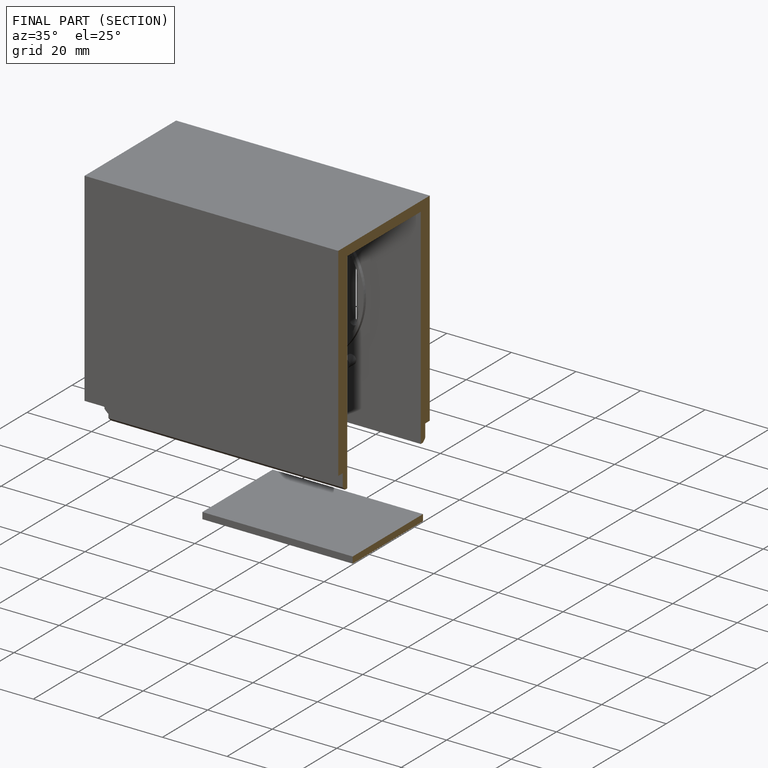
[diagram: finished part — half-section view (interior)]
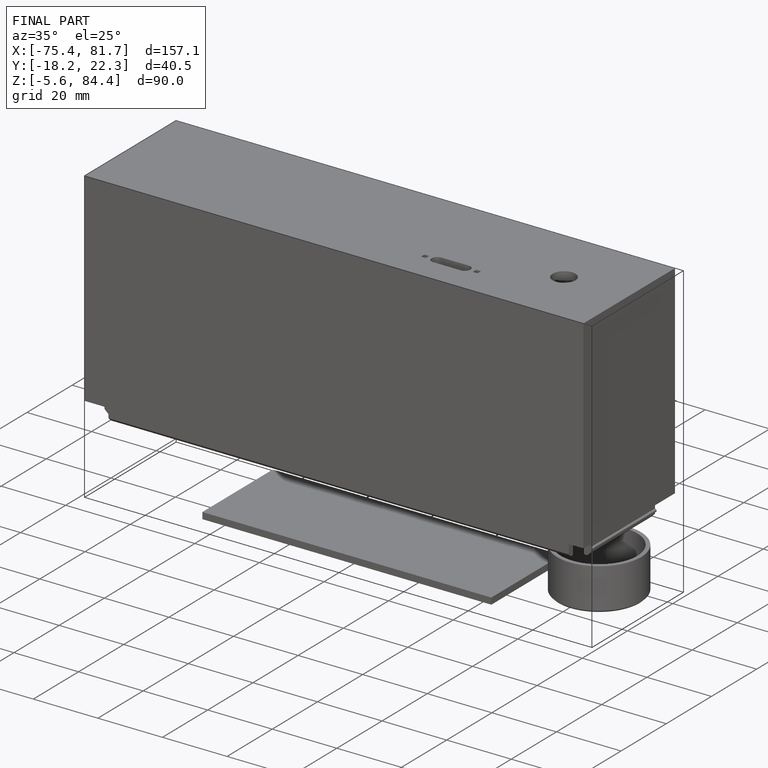
[diagram: finished part — iso view with bounding-box wireframe]
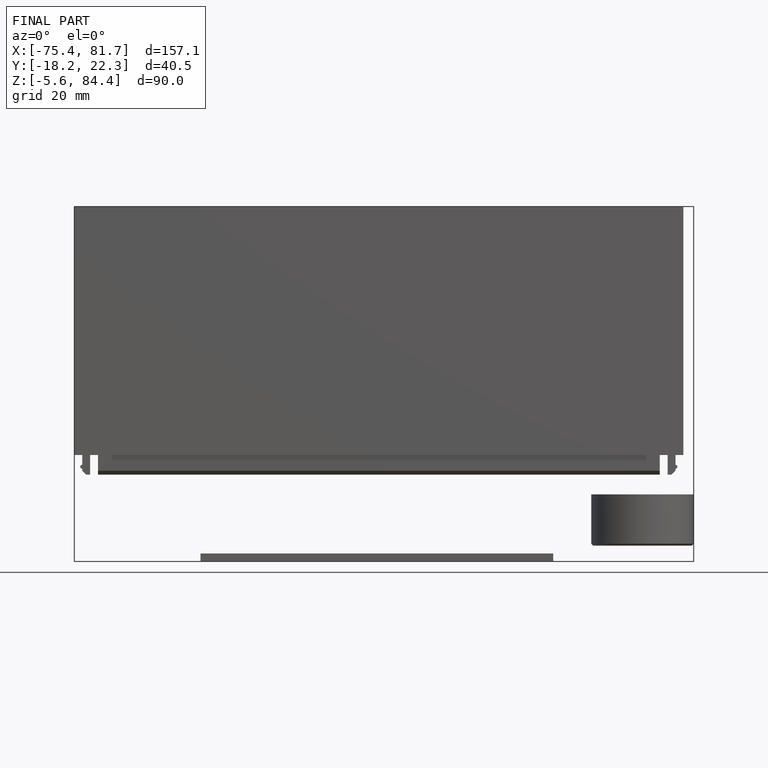
[diagram: finished part — front view with bounding-box wireframe]
